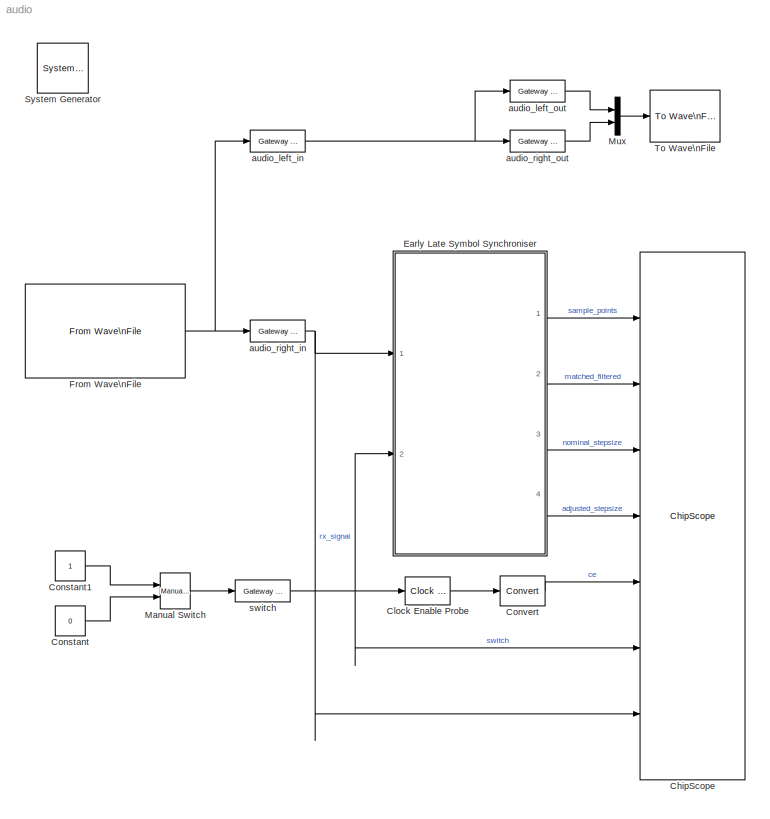
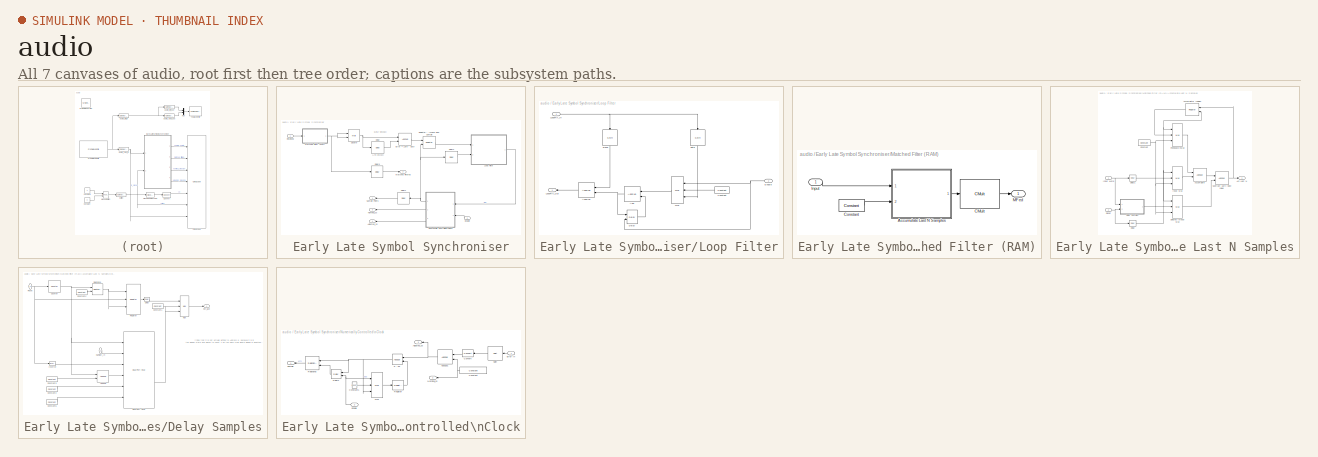
[diagram: thumbnail index - all 7 canvases of the model, root first then tree order]
MODEL audio
KIND model
CONFIG PreLoadFcn = Tsysclk=1/24000000; \nFs = 48000;\ncode_a = [0 0 0 0 1];\ncode_b = [0 0 0 1 0];\ncode_c = [0 0 0 1 1];\ncode_d = [1 0 1 1 1];\nsum_filter_taps = ones(1,31);
BLOCK [Reference]  System Generator  REF=xbsIndex_r4/ System Generator
  AttributesFormatString = System\\nGenerator
  FunctionWithSeparateData = off
  Ports = []
  RTWMemSecDataConstants = Inherit from model
  RTWMemSecDataInternal = Inherit from model
  RTWMemSecDataParameters = Inherit from model
  RTWMemSecFuncExecute = Inherit from model
  RTWMemSecFuncInitTerm = Inherit from model
  ShowPortLabels = FromPortIcon
  SourceBlock = xbsIndex_r4/ System Generator
  SourceType = Xilinx System Generator Block
  SystemSampleTime = -1
  Tag = genX
  UserData = DataTag0
  UserDataPersistent = on
  block_type = sysgen
  block_version = 8.2
  clock_wrapper = Clock Enables
  core_generation = According to Block Masks
  dbl_ovrd = According to Block Masks
  dcm_input_clock_period = 100
  deprecated_control = off
  directory = ./audio_earlylate
  eval_field = 0
  has_advanced_control = 0
  incr_netlist = off
  infoedit = System Generator
  package = ff896
  part = xc2vp30
  run_coregen = off
  sg_blockgui_xml = <!--  *  <copyright redacted>\n <icon width=\"51\" bg_color=\"beige\" height=\"50\" capti...<+2851ch>
  sg_icon_stat = 51,50,-1,-1,red,beige,0,07734
  sg_mask_display = fprintf('','COMMENT: begin icon graphics');\npatch([0 51 51 0 ],[0 0 50 50 ],[0.93 0.92 0.86]);\npatch([12 4 16 4 12 25 29 33 47 36 25 17 29 17 25 36 47 33 29 25 12 ],[5 13 25 37 45 45 41 45 45 34 45 37 25 13 5 16 5 5 9 5 5 ],[0.6 0.2 0.25]);\nplot([0 0 51 51 0 ],[0 50 50 0 0 ]);\nfprintf('','COMMENT: end icon graphics');\nfprintf('','COMMENT: begin icon text');\nfprintf('','COMMENT: end icon text...<+5ch>
  sggui_pos = -1,-1,-1,-1
  simulink_period = Tsysclk
  speed = -7
  synthesis_tool = XST
  sysclk_period = 50
  testbench = off
  trim_vbits = Everywhere in SubSystem
  xilinxfamily = virtex2p
BLOCK [Reference] ChipScope  REF=xbsIndex_r4/ChipScope
  Ports = [7]
  SRL16s = on
  SourceBlock = xbsIndex_r4/ChipScope
  SourceType = Xilinx ChipScope Block
  block_type = chipscope
  block_version = 10.1.2
  current_port = 5
  data_depth = 16384
  data_is_trigger = on
  dbl_ovrd = 0
  has_advanced_control = 0
  infoedit = Enables run-time debugging and verification of signals by inserting ChipScope Pro ICON and ILA cores.<br><br>  Restrictions: <br>Only one ChipScope core can be instantiated in a System Generator design.This block cannot be used at the same time as JTAG hardware co-simulation.A design or subsystem containing a ChipScope block must have at least one output port.
  match_type = Extended
  match_type_t0 = 1
  match_type_t1 = 3
  match_type_t10 = 1
  match_type_t11 = 1
  match_type_t12 = 1
  match_type_t13 = 1
  match_type_t14 = 1
  match_type_t15 = 1
  match_type_t2 = 3
  match_type_t3 = 3
  match_type_t4 = 3
  match_type_t5 = 3
  match_type_t6 = 3
  match_type_t7 = 1
  match_type_t8 = 1
  match_type_t9 = 1
  match_units = 1
  match_units_t0 = 1
  match_units_t1 = 1
  match_units_t10 = 1
  match_units_t11 = 1
  match_units_t12 = 1
  match_units_t13 = 1
  match_units_t14 = 1
  match_units_t15 = 1
  match_units_t2 = 1
  match_units_t3 = 1
  match_units_t4 = 1
  match_units_t5 = 1
  match_units_t6 = 1
  match_units_t7 = 1
  match_units_t8 = 1
  match_units_t9 = 1
  num_data_ports = 4
  num_trig_ports = 7
  sg_icon_stat = 105,528,1,1,white,blue,0,ec51509f,right
  sg_list_contents = {'table'=>{'show_trig_port'=>'popup(0|1|2|3|4|5|6)','userSelections'=>{'show_trig_port'=>'5'}}}
  sg_mask_display = fprintf('','COMMENT: begin icon graphics');\npatch([0 60 60 0 ],[0 0 84 84 ],[0.77 0.82 0.91]);\npatch([14 4 18 4 14 30 34 38 55 42 29 20 35 20 29 42 55 38 34 30 14 ],[18 28 42 56 66 66 62 66 66 53 66 57 42 27 18 31 18 18 22 18 18 ],[0.98 0.96 0.92]);\nplot([0 60 60 0 0 ],[0 0 84 84 0 ]);\nfprintf('','COMMENT: end icon graphics');\nfprintf('','COMMENT: begin icon text');\ncolor('black');port_label...<+387ch>
  sggui_pos = 996,253,336,501
  show_trig_port = 0
BLOCK [Reference] Clock Enable Probe  REF=xbsIndex_r4/Clock Enable Probe
  Ports = [1, 1]
  SourceBlock = xbsIndex_r4/Clock Enable Probe
  SourceType = Xilinx Clock Enable Probe Block
  block_type = ceprobe
  block_version = 10.1.2
  has_advanced_control = 0
  infoedit = Clock enable extractor.  Produces a Boolean output that mirrors the hardware clock enable associated with the input sample rate.<P><P>Hardware notes: in hardware this block costs nothing.
  sg_icon_stat = 45,28,1,1,white,blue,0,74629d84,right
  sg_mask_display = fprintf('','COMMENT: begin icon graphics');\npatch([0 45 45 0 ],[0 0 28 28 ],[0.77 0.82 0.91]);\npatch([15 10 17 10 15 22 24 26 34 28 22 18 26 18 22 28 34 26 24 22 15 ],[3 8 15 22 27 27 25 27 27 21 27 23 15 7 3 9 3 3 5 3 3 ],[0.98 0.96 0.92]);\nplot([0 45 45 0 0 ],[0 0 28 28 0 ]);\nfprintf('','COMMENT: end icon graphics');\nfprintf('','COMMENT: begin icon text');\ncolor('black');disp('CEProbe');\n...<+39ch>
  sggui_pos = 20,20,170,159
BLOCK [Constant] Constant
  SampleTime = Tsysclk*500
  Value = 0
BLOCK [Constant] Constant1
  SampleTime = Tsysclk*500
BLOCK [Reference] Convert  REF=xbsIndex_r4/Convert
  Ports = [1, 1]
  SourceBlock = xbsIndex_r4/Convert
  SourceType = Xilinx Type Converter Block
  arith_type = Unsigned
  bin_pt = 0
  block_type = convert
  block_version = 10.1.2
  dbl_ovrd = off
  has_advanced_control = 0
  infoedit = Hardware notes: rounding and saturating require hardware resources; truncating and wrapping do not.
  latency = 0
  n_bits = 1
  overflow = Wrap
  pipeline = off
  quantization = Truncate
  sg_icon_stat = 45,30,1,1,white,blue,0,74901e60,right
  sg_mask_display = fprintf('','COMMENT: begin icon graphics');\npatch([0 45 45 0 ],[0 0 30 30 ],[0.77 0.82 0.91]);\npatch([15 10 17 10 15 23 25 27 35 28 22 17 23 17 22 28 35 27 25 23 15 ],[3 8 15 22 27 27 25 27 27 20 26 21 15 9 4 10 3 3 5 3 3 ],[0.98 0.96 0.92]);\nplot([0 45 45 0 0 ],[0 0 30 30 0 ]);\nfprintf('','COMMENT: end icon graphics');\nfprintf('','COMMENT: begin icon text');\ncolor('black');port_label('outpu...<+54ch>
  sggui_pos = 20,20,470,336
  xl_area = [0,0,0,0,0,0,0]
  xl_use_area = off
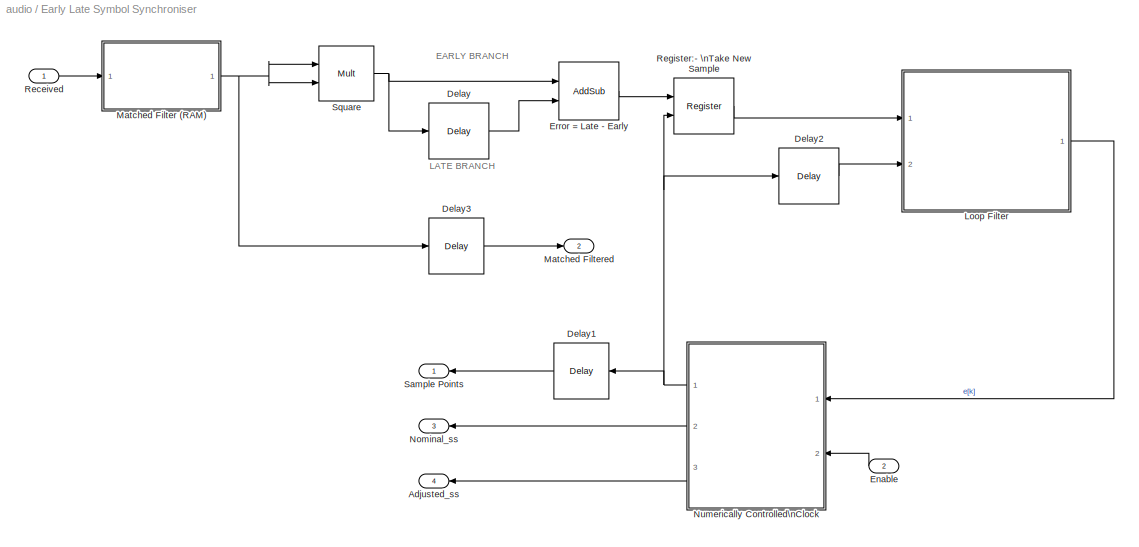
BLOCK [SubSystem] Early Late Symbol Synchroniser
  FunctionWithSeparateData = off
  MaskHideContents = off
  MinAlgLoopOccurrences = off
  Ports = [2, 4]
  RTWSystemCode = Auto
BLOCK [Outport] Early Late Symbol Synchroniser/Adjusted_ss
  BusOutputAsStruct = off
  IconDisplay = Port number
  Port = 4
BLOCK [Reference] Early Late Symbol Synchroniser/Delay  REF=xbsIndex_r4/Delay
  Ports = [1, 1]
  SourceBlock = xbsIndex_r4/Delay
  SourceType = Xilinx Delay Block
  block_type = delay
  block_version = 9.2.01
  dbl_ovrd = off
  en = off
  has_advanced_control = 0
  infoedit = Hardware notes: A delay line is a chain, each link of which is an SRL16 followed by a flip-flop.
  latency = 10
  reg_retiming = off
  sg_icon_stat = 60,56,1,1,white,blue,0,fc1feff4,right
  sg_mask_display = fprintf('','COMMENT: begin icon graphics');\npatch([0 60 60 0 ],[0 0 56 56 ],[0.77 0.82 0.91]);\npatch([15 6 19 6 15 30 34 38 54 41 29 20 32 20 29 41 54 38 34 30 15 ],[6 15 28 41 50 50 46 50 50 37 49 40 28 16 7 19 6 6 10 6 6 ],[0.98 0.96 0.92]);\nplot([0 60 60 0 0 ],[0 0 56 56 0 ]);\nfprintf('','COMMENT: end icon graphics');\nfprintf('','COMMENT: begin icon text');\ncolor('black');disp('z^{-10}','...<+56ch>
  sggui_pos = 20,20,348,255
  xl_area = [0,0,0,0,0,0,0]
  xl_use_area = off
BLOCK [Reference] Early Late Symbol Synchroniser/Delay1  REF=xbsIndex_r4/Delay
  Ports = [1, 1]
  SourceBlock = xbsIndex_r4/Delay
  SourceType = Xilinx Delay Block
  block_type = delay
  block_version = 9.2.01
  dbl_ovrd = off
  en = off
  has_advanced_control = 0
  infoedit = Hardware notes: A delay line is a chain, each link of which is an SRL16 followed by a flip-flop.
  latency = 10
  reg_retiming = off
  sg_icon_stat = 55,56,1,1,white,blue,0,fc1feff4,left
  sg_mask_display = fprintf('','COMMENT: begin icon graphics');\npatch([0 60 60 0 ],[0 0 56 56 ],[0.77 0.82 0.91]);\npatch([15 6 19 6 15 30 34 38 54 41 29 20 32 20 29 41 54 38 34 30 15 ],[6 15 28 41 50 50 46 50 50 37 49 40 28 16 7 19 6 6 10 6 6 ],[0.98 0.96 0.92]);\nplot([0 60 60 0 0 ],[0 0 56 56 0 ]);\nfprintf('','COMMENT: end icon graphics');\nfprintf('','COMMENT: begin icon text');\ncolor('black');disp('z^{-10}','...<+56ch>
  sggui_pos = 20,20,348,255
  xl_area = [0,0,0,0,0,0,0]
  xl_use_area = off
BLOCK [Reference] Early Late Symbol Synchroniser/Delay2  REF=xbsIndex_r4/Delay
  Ports = [1, 1]
  SourceBlock = xbsIndex_r4/Delay
  SourceType = Xilinx Delay Block
  block_type = delay
  block_version = 9.2.01
  dbl_ovrd = off
  en = off
  has_advanced_control = 0
  infoedit = Hardware notes: A delay line is a chain, each link of which is an SRL16 followed by a flip-flop.
  latency = 1
  reg_retiming = off
  sg_icon_stat = 60,56,1,1,white,blue,0,fc531c0e,right
  sg_mask_display = fprintf('','COMMENT: begin icon graphics');\npatch([0 60 60 0 ],[0 0 56 56 ],[0.77 0.82 0.91]);\npatch([15 6 19 6 15 30 34 38 54 41 29 20 32 20 29 41 54 38 34 30 15 ],[6 15 28 41 50 50 46 50 50 37 49 40 28 16 7 19 6 6 10 6 6 ],[0.98 0.96 0.92]);\nplot([0 60 60 0 0 ],[0 0 56 56 0 ]);\nfprintf('','COMMENT: end icon graphics');\nfprintf('','COMMENT: begin icon text');\ncolor('black');disp('z^{-1}','t...<+55ch>  <repeated x4 — deduplicated; at blocks: Delay2, Delay, Delay1>
  sggui_pos = 20,20,348,255
  xl_area = [0,0,0,0,0,0,0]
  xl_use_area = off
BLOCK [Reference] Early Late Symbol Synchroniser/Delay3  REF=xbsIndex_r4/Delay
  Ports = [1, 1]
  SourceBlock = xbsIndex_r4/Delay
  SourceType = Xilinx Delay Block
  block_type = delay
  block_version = 9.2.01
  dbl_ovrd = off
  en = off
  has_advanced_control = 0
  infoedit = Hardware notes: A delay line is a chain, each link of which is an SRL16 followed by a flip-flop.
  latency = 5
  reg_retiming = off
  sg_icon_stat = 55,56,1,1,white,blue,0,4edfc01c,right
  sg_mask_display = fprintf('','COMMENT: begin icon graphics');\npatch([0 60 60 0 ],[0 0 56 56 ],[0.77 0.82 0.91]);\npatch([15 6 19 6 15 30 34 38 54 41 29 20 32 20 29 41 54 38 34 30 15 ],[6 15 28 41 50 50 46 50 50 37 49 40 28 16 7 19 6 6 10 6 6 ],[0.98 0.96 0.92]);\nplot([0 60 60 0 0 ],[0 0 56 56 0 ]);\nfprintf('','COMMENT: end icon graphics');\nfprintf('','COMMENT: begin icon text');\ncolor('black');disp('z^{-5}','t...<+55ch>
  sggui_pos = 20,20,348,255
  xl_area = [0,0,0,0,0,0,0]
  xl_use_area = off
BLOCK [Inport] Early Late Symbol Synchroniser/Enable
  IconDisplay = Port number
  Port = 2
BLOCK [Reference] Early Late Symbol Synchroniser/Error = Late - Early  REF=xbsIndex_r4/AddSub
  Ports = [2, 1]
  SourceBlock = xbsIndex_r4/AddSub
  SourceType = Xilinx Adder/Subtractor Block
  arith_type = Signed  (2's comp)
  bin_pt = 14
  block_type = addsub
  block_version = 9.2.01
  dbl_ovrd = off
  en = off
  has_advanced_control = 0
  latency = 0
  mode = Subtraction
  n_bits = 16
  overflow = Wrap
  pipelined = off
  precision = User Defined
  quantization = Truncate
  sg_icon_stat = 60,58,1,1,white,blue,0,46b4c804,right
  sg_mask_display = fprintf('','COMMENT: begin icon graphics');\npatch([0 60 60 0 ],[0 0 58 58 ],[0.77 0.82 0.91]);\npatch([15 5 19 5 15 30 34 38 54 41 29 20 34 20 29 41 54 38 34 30 15 ],[6 16 30 44 54 54 50 54 54 41 53 44 30 16 7 19 6 6 10 6 6 ],[0.98 0.96 0.92]);\nplot([0 60 60 0 0 ],[0 0 58 58 0 ]);\nfprintf('','COMMENT: end icon graphics');\nfprintf('','COMMENT: begin icon text');\ncolor('black');port_label('inpu...<+163ch>  <repeated x7 — deduplicated; at blocks: Error = Late - Early, Add, AddSub, Accumulate, Subtract 16th \nlast value, AddSub1>
  sggui_pos = 20,20,348,307
  use_behavioral_HDL = off
  use_carryin = off
  use_carryout = off
  use_rpm = on
  xl_area = [0,0,0,0,0,0,0]
  xl_use_area = off
BLOCK [SubSystem] Early Late Symbol Synchroniser/Loop Filter
  FunctionWithSeparateData = off
  MaskCallbackString = |||
  MaskDescription = The loop filter contains two paths: a proportional path and an integral path. These are characterised by coefficients Alpha and Beta, respectively. Multiplications by these coefficients are both realised via shifts, for hardware efficiency reasons.\n\nMask to be completed... not yet straight on the wordlength implications and the choices that should be presented via the mask.
  MaskEnableString = on,on,on,on
  MaskHideContents = off
  MaskIconFrame = on
  MaskIconOpaque = on
  MaskIconRotate = none
  MaskIconUnits = autoscale
  MaskInitialization = if extend_wl == true\n    alpha_shift_wl = phase_det_word + alpha_n;\n    beta_shift_wl = phase_det_word + beta_n;\nelse\n    alpha_shift_wl = phase_det_word;\n    beta_shift_wl = phase_det_word;\nend
  MaskPromptString = Alpha (bits to shift right by)|Beta (bits to shift right by)|Input wordlength|Retain full precision?
  MaskStyleString = edit,edit,edit,checkbox
  MaskTabNameString = ,,,
  MaskToolTipString = on,on,on,on
  MaskTunableValueString = on,on,on,on
  MaskType = Loop Filter Parameters
  MaskValueString = 5|9|16|on
  MaskVarAliasString = ,,,
  MaskVariables = alpha_n=@1;beta_n=@2;phase_det_word=@3;extend_wl=@4;
  MaskVisibilityString = on,on,on,on
  MinAlgLoopOccurrences = off
  Ports = [2, 1]
  RTWSystemCode = Auto
BLOCK [Reference] Early Late Symbol Synchroniser/Loop Filter/Add  REF=xbsIndex_r4/AddSub
  Ports = [2, 1]
  SourceBlock = xbsIndex_r4/AddSub
  SourceType = Xilinx Adder/Subtractor Block
  arith_type = Signed  (2's comp)
  bin_pt = 20
  block_type = addsub
  block_version = 9.2.01
  dbl_ovrd = off
  en = off
  has_advanced_control = 0
  latency = 0
  mode = Addition
  n_bits = 40
  overflow = Wrap
  pipelined = off
  precision = User Defined
  quantization = Round  (unbiased: +/- Inf)
  sg_icon_stat = 60,58,1,1,white,blue,0,36a47907,right
  sggui_pos = 20,20,348,307
  use_behavioral_HDL = off
  use_carryin = off
  use_carryout = off
  use_rpm = on
  xl_area = [0,0,0,0,0,0,0]
  xl_use_area = off
BLOCK [Reference] Early Late Symbol Synchroniser/Loop Filter/AddSub  REF=xbsIndex_r4/AddSub
  Ports = [2, 1]
  SourceBlock = xbsIndex_r4/AddSub
  SourceType = Xilinx Adder/Subtractor Block
  arith_type = Signed  (2's comp)
  bin_pt = 14
  block_type = addsub
  block_version = 9.2.01
  dbl_ovrd = off
  en = off
  has_advanced_control = 0
  latency = 0
  mode = Addition
  n_bits = 20
  overflow = Wrap
  pipelined = off
  precision = Full
  quantization = Round  (unbiased: +/- Inf)
  sg_icon_stat = 60,58,1,1,white,blue,0,36a47907,right
  sggui_pos = 20,20,348,307
  use_behavioral_HDL = off
  use_carryin = off
  use_carryout = off
  use_rpm = on
  xl_area = [0,0,0,0,0,0,0]
  xl_use_area = off
BLOCK [Reference] Early Late Symbol Synchroniser/Loop Filter/Constant  REF=xbsIndex_r4/Constant
  Ports = [0, 1]
  SourceBlock = xbsIndex_r4/Constant
  SourceType = Xilinx Constant Block Block
  arith_type = Signed (2's comp)
  bin_pt = 0
  block_type = constant
  block_version = 9.2.01
  carry = CIN
  const = 0
  dbl_ovrd = off
  dsp48_infoedit = The use of this block for DSP48 instructions is deprecated.  Please use the Opmode block.
  equ = P=C
  explicit_period = off
  has_advanced_control = 0
  inp1 = P
  inp2 = PCIN>>17
  n_bits = 2
  opr = +
  opselect = C
  period = 1
  sg_icon_stat = 55,26,1,1,white,blue,0,72d575a1,right
  sg_mask_display = fprintf('','COMMENT: begin icon graphics');\npatch([0 55 55 0 ],[0 0 26 26 ],[0.77 0.82 0.91]);\npatch([20 16 22 16 20 27 29 31 38 32 26 22 28 22 26 32 38 31 29 27 20 ],[3 7 13 19 23 23 21 23 23 17 23 19 13 7 3 9 3 3 5 3 3 ],[0.98 0.96 0.92]);\nplot([0 55 55 0 0 ],[0 0 26 26 0 ]);\nfprintf('','COMMENT: end icon graphics');\nfprintf('','COMMENT: begin icon text');\ncolor('black');port_label('output...<+50ch>  <repeated x6 — deduplicated; at blocks: Constant, Constant1, Constant2, Constant5>
  sggui_pos = 20,20,400,346
BLOCK [Reference] Early Late Symbol Synchroniser/Loop Filter/Delay  REF=xbsIndex_r4/Delay
  Ports = [2, 1]
  SourceBlock = xbsIndex_r4/Delay
  SourceType = Xilinx Delay Block
  block_type = delay
  block_version = 9.2.01
  dbl_ovrd = off
  en = on
  has_advanced_control = 0
  infoedit = Hardware notes: A delay line is a chain, each link of which is an SRL16 followed by a flip-flop.
  latency = 1
  reg_retiming = off
  sg_icon_stat = 40,53,1,1,white,blue,0,9c7d2b66,right
  sg_mask_display = fprintf('','COMMENT: begin icon graphics');\npatch([0 40 40 0 ],[0 0 53 53 ],[0.77 0.82 0.91]);\npatch([10 3 12 3 10 21 24 27 38 29 20 14 24 14 20 29 38 27 24 21 10 ],[11 18 27 36 43 43 40 43 43 34 43 37 27 17 11 20 11 11 14 11 11 ],[0.98 0.96 0.92]);\nplot([0 40 40 0 0 ],[0 0 53 53 0 ]);\nfprintf('','COMMENT: end icon graphics');\nfprintf('','COMMENT: begin icon text');\ncolor('black');port_label...<+105ch>
  sggui_pos = 20,20,348,255
  xl_area = [0,0,0,0,0,0,0]
  xl_use_area = off
BLOCK [Inport] Early Late Symbol Synchroniser/Loop Filter/Enable
  IconDisplay = Port number
  Port = 2
BLOCK [Inport] Early Late Symbol Synchroniser/Loop Filter/LoopFilt_In
  IconDisplay = Port number
BLOCK [Outport] Early Late Symbol Synchroniser/Loop Filter/LoopFilt_Out
  BusOutputAsStruct = off
  IconDisplay = Port number
BLOCK [Reference] Early Late Symbol Synchroniser/Loop Filter/Mux  REF=xbsIndex_r4/Mux
  Ports = [3, 1]
  SourceBlock = xbsIndex_r4/Mux
  SourceType = Xilinx Bus Multiplexer Block
  arith_type = Unsigned
  bin_pt = 14
  block_type = mux
  block_version = 9.2.01
  dbl_ovrd = off
  en = off
  has_advanced_control = 0
  inputs = 2
  latency = 0
  n_bits = 16
  overflow = Wrap
  precision = Full
  quantization = Truncate
  sg_icon_stat = 45,104,1,1,white,blue,3,613f58e1,left
  sg_mask_display = fprintf('','COMMENT: begin icon graphics');\npatch([0 45 45 0 ],[0 14.8571 89.1429 104 ],[0.77 0.82 0.91]);\npatch([10 3 14 3 10 22 25 28 41 31 21 14 25 14 21 31 41 28 25 22 10 ],[34 41 52 63 70 70 67 70 70 60 70 63 52 41 34 44 34 34 37 34 34 ],[0.98 0.96 0.92]);\nplot([0 45 45 0 0 ],[0 14.8571 89.1429 104 0 ]);\nfprintf('','COMMENT: end icon graphics');\nfprintf('','COMMENT: begin icon text');\nc...<+218ch>  <repeated x6 — deduplicated; at blocks: Mux, Delayed \nInput Mux, Feedback\nMux, Input Mux>
  sggui_pos = -1,-1,-1,-1
  xl_area = [0,0,0,0,0,0,0]
  xl_use_area = off
BLOCK [Reference] Early Late Symbol Synchroniser/Loop Filter/alpha  REF=xbsIndex_r4/Shift
  Ports = [1, 1]
  SourceBlock = xbsIndex_r4/Shift
  SourceType = Xilinx Binary Shift Operator Block
  arith_type = Signed  (2's comp)
  bin_pt = alpha_shift_wl-2
  block_type = shift
  block_version = 9.2.01
  dbl_ovrd = off
  en = off
  has_advanced_control = 0
  infoedit = Hardware notes: In hardware this block costs nothing if full output precision is used.
  latency = 0
  n_bits = alpha_shift_wl
  overflow = Wrap
  precision = User Defined
  quantization = Round  (unbiased: +/- Inf)
  sg_icon_stat = 56,60,1,1,white,blue,0,a5bf79ea,right
  sg_mask_display = fprintf('','COMMENT: begin icon graphics');\npatch([0 60 60 0 ],[0 0 56 56 ],[0.77 0.82 0.91]);\npatch([15 6 19 6 15 30 34 38 54 41 29 20 32 20 29 41 54 38 34 30 15 ],[6 15 28 41 50 50 46 50 50 37 49 40 28 16 7 19 6 6 10 6 6 ],[0.98 0.96 0.92]);\nplot([0 60 60 0 0 ],[0 0 56 56 0 ]);\nfprintf('','COMMENT: end icon graphics');\nfprintf('','COMMENT: begin icon text');\ncolor('black');disp('\\newline\...<+85ch>  <repeated x3 — deduplicated; at blocks: alpha, beta, Shift>
  sggui_pos = 20,20,348,345
  shift_bits = alpha_n
  shift_dir = Right
  xl_area = [0,0,0,0,0,0,0]
  xl_use_area = off
BLOCK [Reference] Early Late Symbol Synchroniser/Loop Filter/beta  REF=xbsIndex_r4/Shift
  Ports = [1, 1]
  SourceBlock = xbsIndex_r4/Shift
  SourceType = Xilinx Binary Shift Operator Block
  arith_type = Signed  (2's comp)
  bin_pt = beta_shift_wl-2
  block_type = shift
  block_version = 9.2.01
  dbl_ovrd = off
  en = off
  has_advanced_control = 0
  infoedit = Hardware notes: In hardware this block costs nothing if full output precision is used.
  latency = 0
  n_bits = beta_shift_wl
  overflow = Wrap
  precision = User Defined
  quantization = Round  (unbiased: +/- Inf)
  sg_icon_stat = 56,60,1,1,white,blue,0,3d17c8c9,right
  sggui_pos = 20,20,348,345
  shift_bits = beta_n
  shift_dir = Right
  xl_area = [0,0,0,0,0,0,0]
  xl_use_area = off
BLOCK [SubSystem] Early Late Symbol Synchroniser/Matched Filter (RAM)
  FunctionWithSeparateData = off
  MaskDescription = This acts as a moving average filter of length N samples.
  MaskEnableString = on
  MaskHideContents = off
  MaskIconFrame = on
  MaskIconOpaque = on
  MaskIconRotate = none
  MaskIconUnits = autoscale
  MaskPromptString = Moving Average (N samples)
  MaskStyleString = edit
  MaskToolTipString = on
  MaskTunableValueString = on
  MaskType = Rectangular Matched Filter
  MaskValueString = 20
  MaskVariables = N=@1;
  MaskVisibilityString = on
  MinAlgLoopOccurrences = off
  Ports = [1, 1]
  RTWSystemCode = Auto
BLOCK [SubSystem] Early Late Symbol Synchroniser/Matched Filter (RAM)/Accumulate Last N Samples
  FunctionWithSeparateData = off
  MaskCallbackString = ||
  MaskDescription = This block accumulates over a specified number of samples.\n\nInternal and output wordlengths are defined by the wordlength of the input, and the accumulator window.
  MaskEnableString = on,on,on
  MaskHideContents = off
  MaskIconFrame = on
  MaskIconOpaque = on
  MaskIconRotate = none
  MaskIconUnits = autoscale
  MaskPromptString = Accumulate window (samples)|Input wordlength|Binary point
  MaskStyleString = edit,edit,edit
  MaskTabNameString = ,,
  MaskToolTipString = on,on,on
  MaskTunableValueString = on,on,on
  MaskType = Sliding Accumulator
  MaskValueString = N|16|14
  MaskVarAliasString = ,,
  MaskVariables = N=@1;Wbits=@2;Bpoint=@3;
  MaskVisibilityString = on,on,on
  MinAlgLoopOccurrences = off
  Ports = [2, 1]
  RTWSystemCode = Auto
BLOCK [Outport] Early Late Symbol Synchroniser/Matched Filter (RAM)/Accumulate Last N Samples/Acc Last N
  BusOutputAsStruct = off
  IconDisplay = Port number
BLOCK [Reference] Early Late Symbol Synchroniser/Matched Filter (RAM)/Accumulate Last N Samples/Accumulate  REF=xbsIndex_r4/AddSub
  Ports = [2, 1]
  SourceBlock = xbsIndex_r4/AddSub
  SourceType = Xilinx Adder/Subtractor Block
  arith_type = Signed  (2's comp)
  bin_pt = Bpoint
  block_type = addsub
  block_version = 9.2.01
  dbl_ovrd = off
  en = off
  has_advanced_control = 0
  latency = 0
  mode = Addition
  n_bits = Wbits+ceil(log2(N))
  overflow = Wrap
  pipelined = off
  precision = User Defined
  quantization = Truncate
  sg_icon_stat = 60,58,1,1,white,blue,0,36a47907,right
  sggui_pos = 20,20,348,307
  use_behavioral_HDL = off
  use_carryin = off
  use_carryout = off
  use_rpm = on
  xl_area = [9 0 0 16 0 0 0]
  xl_use_area = off
BLOCK [Reference] Early Late Symbol Synchroniser/Matched Filter (RAM)/Accumulate Last N Samples/Accumulator \nDelay  REF=xbsIndex_r4/Register
  Ports = [2, 1]
  SourceBlock = xbsIndex_r4/Register
  SourceType = Xilinx Register Block
  block_type = register
  block_version = 9.2.01
  dbl_ovrd = off
  en = off
  has_advanced_control = 0
  init = 0
  rst = on
  sg_icon_stat = 60,56,1,1,white,blue,0,b6caf0d3,left
  sg_mask_display = fprintf('','COMMENT: begin icon graphics');\npatch([0 60 60 0 ],[0 0 56 56 ],[0.77 0.82 0.91]);\npatch([15 6 19 6 15 30 34 38 54 41 29 20 32 20 29 41 54 38 34 30 15 ],[6 15 28 41 50 50 46 50 50 37 49 40 28 16 7 19 6 6 10 6 6 ],[0.98 0.96 0.92]);\nplot([0 60 60 0 0 ],[0 0 56 56 0 ]);\nfprintf('','COMMENT: end icon graphics');\nfprintf('','COMMENT: begin icon text');\ncolor('black');port_label('inpu...<+193ch>
  sggui_pos = 20,20,348,193
  xl_area = [8 16 0 0 0 0 0]
  xl_use_area = off
BLOCK [Reference] Early Late Symbol Synchroniser/Matched Filter (RAM)/Accumulate Last N Samples/Constant  REF=xbsIndex_r4/Constant
  Ports = [0, 1]
  SourceBlock = xbsIndex_r4/Constant
  SourceType = Xilinx Constant Block Block
  arith_type = Signed (2's comp)
  bin_pt = 0
  block_type = constant
  block_version = 9.2.01
  carry = CIN
  const = 0
  dbl_ovrd = off
  dsp48_infoedit = The use of this block for DSP48 instructions is deprecated.  Please use the Opmode block.
  equ = P=C
  explicit_period = off
  has_advanced_control = 0
  inp1 = P
  inp2 = PCIN>>17
  n_bits = 2
  opr = +
  opselect = C
  period = 1
  sg_icon_stat = 55,26,1,1,white,blue,0,72d575a1,right
  sggui_pos = 20,20,400,346
BLOCK [Reference] Early Late Symbol Synchroniser/Matched Filter (RAM)/Accumulate Last N Samples/Delay  REF=xbsIndex_r4/Delay
  Ports = [1, 1]
  SourceBlock = xbsIndex_r4/Delay
  SourceType = Xilinx Delay Block
  block_type = delay
  block_version = 9.2.01
  dbl_ovrd = off
  en = off
  has_advanced_control = 0
  infoedit = Hardware notes: A delay line is a chain, each link of which is an SRL16 followed by a flip-flop.
  latency = 1
  reg_retiming = off
  sg_icon_stat = 30,28,1,1,white,blue,0,fc531c0e,right
  sggui_pos = -1,-1,-1,-1
  xl_area = [0,0,0,0,0,0,0]
  xl_use_area = off
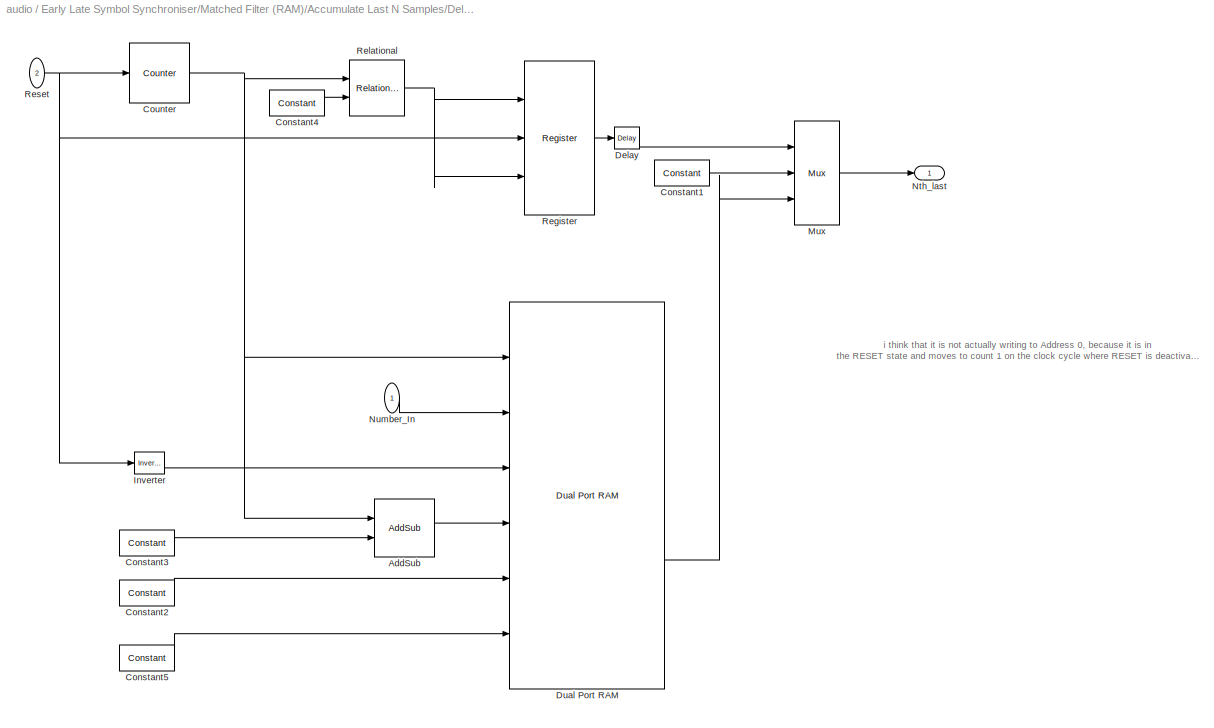
BLOCK [SubSystem] Early Late Symbol Synchroniser/Matched Filter (RAM)/Accumulate Last N Samples/Delay Samples
  FunctionWithSeparateData = off
  MaskDescription = A dual-port RAM is used to synthesise a resettable delay line of the specified number of samples.
  MaskEnableString = on
  MaskHideContents = off
  MaskIconFrame = on
  MaskIconOpaque = on
  MaskIconRotate = none
  MaskIconUnits = autoscale
  MaskPromptString = Samples delay
  MaskStyleString = edit
  MaskToolTipString = on
  MaskTunableValueString = on
  MaskType = Parameterisable Delay
  MaskValueString = N
  MaskVariables = D=@1;
  MaskVisibilityString = on
  MinAlgLoopOccurrences = off
  Ports = [2, 1]
  RTWSystemCode = Auto
BLOCK [Reference] Early Late Symbol Synchroniser/Matched Filter (RAM)/Accumulate Last N Samples/Delay Samples/AddSub  REF=xbsIndex_r4/AddSub
  Ports = [2, 1]
  SourceBlock = xbsIndex_r4/AddSub
  SourceType = Xilinx Adder/Subtractor Block
  arith_type = Unsigned
  bin_pt = 0
  block_type = addsub
  block_version = 9.2.01
  dbl_ovrd = off
  en = off
  has_advanced_control = 0
  latency = 0
  mode = Subtraction
  n_bits = ceil(log2(D)+1)
  overflow = Wrap
  pipelined = off
  precision = User Defined
  quantization = Truncate
  sg_icon_stat = 60,58,1,1,white,blue,0,46b4c804,right
  sggui_pos = 20,20,348,307
  use_behavioral_HDL = off
  use_carryin = off
  use_carryout = off
  use_rpm = on
  xl_area = [0,0,0,0,0,0,0]
  xl_use_area = off
BLOCK [Reference] Early Late Symbol Synchroniser/Matched Filter (RAM)/Accumulate Last N Samples/Delay Samples/Constant1  REF=xbsIndex_r4/Constant
  Ports = [0, 1]
  SourceBlock = xbsIndex_r4/Constant
  SourceType = Xilinx Constant Block Block
  arith_type = Signed (2's comp)
  bin_pt = 0
  block_type = constant
  block_version = 9.2.01
  carry = CIN
  const = 0
  dbl_ovrd = off
  dsp48_infoedit = The use of this block for DSP48 instructions is deprecated.  Please use the Opmode block.
  equ = P=C
  explicit_period = off
  has_advanced_control = 0
  inp1 = P
  inp2 = PCIN>>17
  n_bits = 2
  opr = +
  opselect = C
  period = 1
  sg_icon_stat = 55,26,1,1,white,blue,0,72d575a1,right
  sggui_pos = 20,20,400,346
BLOCK [Reference] Early Late Symbol Synchroniser/Matched Filter (RAM)/Accumulate Last N Samples/Delay Samples/Constant2  REF=xbsIndex_r4/Constant
  Ports = [0, 1]
  SourceBlock = xbsIndex_r4/Constant
  SourceType = Xilinx Constant Block Block
  arith_type = Signed (2's comp)
  bin_pt = 14
  block_type = constant
  block_version = 9.2.01
  carry = CIN
  const = 0
  dbl_ovrd = off
  dsp48_infoedit = The use of this block for DSP48 instructions is deprecated.  Please use the Opmode block.
  equ = P=C
  explicit_period = off
  has_advanced_control = 0
  inp1 = P
  inp2 = PCIN>>17
  n_bits = 16
  opr = +
  opselect = C
  period = 1
  sg_icon_stat = 55,26,1,1,white,blue,0,72d575a1,right
  sggui_pos = 20,20,400,346
BLOCK [Reference] Early Late Symbol Synchroniser/Matched Filter (RAM)/Accumulate Last N Samples/Delay Samples/Constant3  REF=xbsIndex_r4/Constant
  Ports = [0, 1]
  SourceBlock = xbsIndex_r4/Constant
  SourceType = Xilinx Constant Block Block
  arith_type = Unsigned
  bin_pt = 0
  block_type = constant
  block_version = 9.2.01
  carry = CIN
  const = D
  dbl_ovrd = off
  dsp48_infoedit = The use of this block for DSP48 instructions is deprecated.  Please use the Opmode block.
  equ = P=C
  explicit_period = off
  has_advanced_control = 0
  inp1 = P
  inp2 = PCIN>>17
  n_bits = ceil(log2(D)+1)
  opr = +
  opselect = C
  period = 1
  sg_icon_stat = 55,26,1,1,white,blue,0,11b45204,right
  sg_mask_display = fprintf('','COMMENT: begin icon graphics');\npatch([0 55 55 0 ],[0 0 26 26 ],[0.77 0.82 0.91]);\npatch([20 16 22 16 20 27 29 31 38 32 26 22 28 22 26 32 38 31 29 27 20 ],[3 7 13 19 23 23 21 23 23 17 23 19 13 7 3 9 3 3 5 3 3 ],[0.98 0.96 0.92]);\nplot([0 55 55 0 0 ],[0 0 26 26 0 ]);\nfprintf('','COMMENT: end icon graphics');\nfprintf('','COMMENT: begin icon text');\ncolor('black');port_label('output...<+51ch>
  sggui_pos = 20,20,400,346
BLOCK [Reference] Early Late Symbol Synchroniser/Matched Filter (RAM)/Accumulate Last N Samples/Delay Samples/Constant4  REF=xbsIndex_r4/Constant
  Ports = [0, 1]
  SourceBlock = xbsIndex_r4/Constant
  SourceType = Xilinx Constant Block Block
  arith_type = Unsigned
  bin_pt = 0
  block_type = constant
  block_version = 9.2.01
  carry = CIN
  const = D-1
  dbl_ovrd = off
  dsp48_infoedit = The use of this block for DSP48 instructions is deprecated.  Please use the Opmode block.
  equ = P=C
  explicit_period = off
  has_advanced_control = 0
  inp1 = P
  inp2 = PCIN>>17
  n_bits = ceil(log2(D))
  opr = +
  opselect = C
  period = 1
  sg_icon_stat = 55,26,1,1,white,blue,0,7ae7743c,right
  sg_mask_display = fprintf('','COMMENT: begin icon graphics');\npatch([0 55 55 0 ],[0 0 26 26 ],[0.77 0.82 0.91]);\npatch([20 16 22 16 20 27 29 31 38 32 26 22 28 22 26 32 38 31 29 27 20 ],[3 7 13 19 23 23 21 23 23 17 23 19 13 7 3 9 3 3 5 3 3 ],[0.98 0.96 0.92]);\nplot([0 55 55 0 0 ],[0 0 26 26 0 ]);\nfprintf('','COMMENT: end icon graphics');\nfprintf('','COMMENT: begin icon text');\ncolor('black');port_label('output...<+51ch>
  sggui_pos = 20,20,400,346
BLOCK [Reference] Early Late Symbol Synchroniser/Matched Filter (RAM)/Accumulate Last N Samples/Delay Samples/Constant5  REF=xbsIndex_r4/Constant
  Ports = [0, 1]
  SourceBlock = xbsIndex_r4/Constant
  SourceType = Xilinx Constant Block Block
  arith_type = Boolean
  bin_pt = 0
  block_type = constant
  block_version = 9.2.01
  carry = CIN
  const = 0
  dbl_ovrd = off
  dsp48_infoedit = The use of this block for DSP48 instructions is deprecated.  Please use the Opmode block.
  equ = P=C
  explicit_period = off
  has_advanced_control = 0
  inp1 = P
  inp2 = PCIN>>17
  n_bits = ceil(log2(D)+1)
  opr = +
  opselect = C
  period = 1
  sg_icon_stat = 55,26,1,1,white,blue,0,72d575a1,right
  sggui_pos = 20,20,400,346
BLOCK [Reference] Early Late Symbol Synchroniser/Matched Filter (RAM)/Accumulate Last N Samples/Delay Samples/Counter  REF=xbsIndex_r4/Counter
  Ports = [1, 1]
  SourceBlock = xbsIndex_r4/Counter
  SourceType = Xilinx Counter Block
  arith_type = Unsigned
  bin_pt = 0
  block_type = counter
  block_version = 9.2.01
  cnt_by_val = 1
  cnt_to = Inf
  cnt_type = Free Running
  dbl_ovrd = off
  en = off
  explicit_period = on
  has_advanced_control = 0
  infoedit = Hardware notes: Free running counters are the least expensive in hardware.  A count limited counter is implemented by combining a counter with a comparator.
  load_pin = off
  n_bits = ceil(log2(D)+1)
  operation = Up
  period = 1/Fs
  rst = on
  sg_icon_stat = 60,60,1,1,white,blue,0,300e9576,right
  sg_mask_display = fprintf('','COMMENT: begin icon graphics');\npatch([0 60 60 0 ],[0 0 60 60 ],[0.77 0.82 0.91]);\npatch([14 4 18 4 14 30 34 38 55 42 29 20 35 20 29 42 55 38 34 30 14 ],[6 16 30 44 54 54 50 54 54 41 54 45 30 15 6 19 6 6 10 6 6 ],[0.98 0.96 0.92]);\nplot([0 60 60 0 0 ],[0 0 60 60 0 ]);\nfprintf('','COMMENT: end icon graphics');\nfprintf('','COMMENT: begin icon text');\ncolor('black');port_label('inpu...<+99ch>
  sggui_pos = 20,20,348,619
  start_count = 0
  use_behavioral_HDL = off
  use_rpm = off
  xl_area = [0,0,0,0,0,0,0]
  xl_use_area = off
BLOCK [Reference] Early Late Symbol Synchroniser/Matched Filter (RAM)/Accumulate Last N Samples/Delay Samples/Delay  REF=xbsIndex_r4/Delay
  Ports = [1, 1]
  SourceBlock = xbsIndex_r4/Delay
  SourceType = Xilinx Delay Block
  block_type = delay
  block_version = 9.2.01
  dbl_ovrd = off
  en = off
  has_advanced_control = 0
  infoedit = Hardware notes: A delay line is a chain, each link of which is an SRL16 followed by a flip-flop.
  latency = 1
  reg_retiming = off
  sg_icon_stat = 25,22,1,1,white,blue,0,fc531c0e,right
  sggui_pos = -1,-1,-1,-1
  xl_area = [0,0,0,0,0,0,0]
  xl_use_area = off
BLOCK [Reference] Early Late Symbol Synchroniser/Matched Filter (RAM)/Accumulate Last N Samples/Delay Samples/Dual Port RAM  REF=xbsIndex_r4/Dual Port RAM
  Ports = [6, 2]
  SourceBlock = xbsIndex_r4/Dual Port RAM
  SourceType = Xilinx Dual Port Random Access Memory Block
  block_type = dpram
  block_version = 9.2.01
  dbl_ovrd = off
  depth = 2^ceil(log2(D)+1)
  distributed_mem = Block RAM
  en_a = off
  en_b = off
  has_advanced_control = 0
  initVector = zeros(1,ceil(log2(D)+1))
  init_a = 0
  init_b = 0
  latency = 1
  optimize = Area
  rst_a = off
  rst_b = off
  sg_icon_stat = 155,387,1,1,white,blue,0,f19ffcf5,right
  sg_mask_display = fprintf('','COMMENT: begin icon graphics');\npatch([0 155 155 0 ],[0 0 387 387 ],[0.77 0.82 0.91]);\npatch([37 11 47 11 37 78 89 100 144 109 76 52 88 52 76 109 144 100 89 78 37 ],[133 159 195 231 257 257 246 257 257 222 255 231 195 159 135 168 133 133 144 133 133 ],[0.98 0.96 0.92]);\nplot([0 155 155 0 0 ],[0 0 387 387 0 ]);\nfprintf('','COMMENT: end icon graphics');\nfprintf('','COMMENT: begin ic...<+415ch>
  sggui_pos = 20,20,384,398
  use_rpm = on
  write_mode_A = Read After Write
  write_mode_B = Read After Write
  xl_area = [0,0,0,0,0,0,0]
  xl_use_area = off
BLOCK [Reference] Early Late Symbol Synchroniser/Matched Filter (RAM)/Accumulate Last N Samples/Delay Samples/Inverter  REF=xbsIndex_r4/Inverter
  Ports = [1, 1]
  SourceBlock = xbsIndex_r4/Inverter
  SourceType = Xilinx Inverter Block
  block_type = inv
  block_version = 9.2.01
  dbl_ovrd = off
  en = off
  has_advanced_control = 0
  infoedit = Bitwise logical negation (one's complement) operator.
  latency = 0
  sg_icon_stat = 30,22,1,1,white,blue,0,1ab4a85f,right
  sg_mask_display = fprintf('','COMMENT: begin icon graphics');\npatch([0 55 55 0 ],[0 0 58 58 ],[0.77 0.82 0.91]);\npatch([13 4 17 4 13 28 32 36 52 40 28 19 32 19 28 40 52 36 32 28 13 ],[7 16 29 42 51 51 47 51 51 39 51 42 29 16 7 19 7 7 11 7 7 ],[0.98 0.96 0.92]);\nplot([0 55 55 0 0 ],[0 0 58 58 0 ]);\nfprintf('','COMMENT: end icon graphics');\nfprintf('','COMMENT: begin icon text');\ncolor('black');disp('not');\nfp...<+37ch>
  sggui_pos = -1,-1,-1,-1
  xl_area = [0,0,0,0,0,0,0]
  xl_use_area = off
BLOCK [Reference] Early Late Symbol Synchroniser/Matched Filter (RAM)/Accumulate Last N Samples/Delay Samples/Mux  REF=xbsIndex_r4/Mux
  Ports = [3, 1]
  SourceBlock = xbsIndex_r4/Mux
  SourceType = Xilinx Bus Multiplexer Block
  arith_type = Unsigned
  bin_pt = 14
  block_type = mux
  block_version = 9.2.01
  dbl_ovrd = off
  en = off
  has_advanced_control = 0
  inputs = 2
  latency = 0
  n_bits = 16
  overflow = Wrap
  precision = Full
  quantization = Truncate
  sg_icon_stat = 45,104,1,1,white,blue,3,613f58e1,right
  sggui_pos = 20,20,348,303
  xl_area = [0,0,0,0,0,0,0]
  xl_use_area = off
BLOCK [Outport] Early Late Symbol Synchroniser/Matched Filter (RAM)/Accumulate Last N Samples/Delay Samples/Nth_last
  BusOutputAsStruct = off
  IconDisplay = Port number
BLOCK [Inport] Early Late Symbol Synchroniser/Matched Filter (RAM)/Accumulate Last N Samples/Delay Samples/Number_In
  IconDisplay = Port number
BLOCK [Reference] Early Late Symbol Synchroniser/Matched Filter (RAM)/Accumulate Last N Samples/Delay Samples/Register  REF=xbsIndex_r4/Register
  Ports = [3, 1]
  SourceBlock = xbsIndex_r4/Register
  SourceType = Xilinx Register Block
  block_type = register
  block_version = 9.2.01
  dbl_ovrd = off
  en = on
  has_advanced_control = 0
  init = 0
  rst = on
  sg_icon_stat = 70,154,1,1,white,blue,0,923c1847,right
  sg_mask_display = fprintf('','COMMENT: begin icon graphics');\npatch([0 60 60 0 ],[0 0 56 56 ],[0.77 0.82 0.91]);\npatch([15 6 19 6 15 30 34 38 54 41 29 20 32 20 29 41 54 38 34 30 15 ],[6 15 28 41 50 50 46 50 50 37 49 40 28 16 7 19 6 6 10 6 6 ],[0.98 0.96 0.92]);\nplot([0 60 60 0 0 ],[0 0 56 56 0 ]);\nfprintf('','COMMENT: end icon graphics');\nfprintf('','COMMENT: begin icon text');\ncolor('black');port_label('inpu...<+237ch>
  sggui_pos = 20,20,348,193
  xl_area = [0,0,0,0,0,0,0]
  xl_use_area = off
BLOCK [Reference] Early Late Symbol Synchroniser/Matched Filter (RAM)/Accumulate Last N Samples/Delay Samples/Relational  REF=xbsIndex_r4/Relational
  Ports = [2, 1]
  SourceBlock = xbsIndex_r4/Relational
  SourceType = Xilinx Arithmetic Relational Operator Block
  block_type = relational
  block_version = 9.2.01
  dbl_ovrd = off
  en = off
  has_advanced_control = 0
  latency = 0
  mode = a=b
  sg_icon_stat = 55,56,1,1,white,blue,0,1b68ef8e,right
  sg_mask_display = fprintf('','COMMENT: begin icon graphics');\npatch([0 55 55 0 ],[0 0 56 56 ],[0.77 0.82 0.91]);\npatch([13 4 17 4 13 28 32 36 52 40 28 19 32 19 28 40 52 36 32 28 13 ],[6 15 28 41 50 50 46 50 50 38 50 41 28 15 6 18 6 6 10 6 6 ],[0.98 0.96 0.92]);\nplot([0 55 55 0 0 ],[0 0 56 56 0 ]);\nfprintf('','COMMENT: end icon graphics');\nfprintf('','COMMENT: begin icon text');\ncolor('black');port_label('inpu...<+168ch>
  sggui_pos = 20,20,348,193
  xl_area = [0,0,0,0,0,0,0]
  xl_use_area = off
BLOCK [Inport] Early Late Symbol Synchroniser/Matched Filter (RAM)/Accumulate Last N Samples/Delay Samples/Reset
  IconDisplay = Port number
  Port = 2
BLOCK [Reference] Early Late Symbol Synchroniser/Matched Filter (RAM)/Accumulate Last N Samples/Delay1  REF=xbsIndex_r4/Delay
  Ports = [1, 1]
  SourceBlock = xbsIndex_r4/Delay
  SourceType = Xilinx Delay Block
  block_type = delay
  block_version = 9.2.01
  dbl_ovrd = off
  en = off
  has_advanced_control = 0
  infoedit = Hardware notes: A delay line is a chain, each link of which is an SRL16 followed by a flip-flop.
  latency = 1
  reg_retiming = off
  sg_icon_stat = 30,28,1,1,white,blue,0,fc531c0e,right
  sggui_pos = 20,20,348,255
  xl_area = [0,0,0,0,0,0,0]
  xl_use_area = off
BLOCK [Reference] Early Late Symbol Synchroniser/Matched Filter (RAM)/Accumulate Last N Samples/Delayed \nInput Mux  REF=xbsIndex_r4/Mux
  Ports = [3, 1]
  SourceBlock = xbsIndex_r4/Mux
  SourceType = Xilinx Bus Multiplexer Block
  arith_type = Unsigned
  bin_pt = 14
  block_type = mux
  block_version = 9.2.01
  dbl_ovrd = off
  en = off
  has_advanced_control = 0
  inputs = 2
  latency = 0
  n_bits = 16
  overflow = Wrap
  precision = Full
  quantization = Truncate
  sg_icon_stat = 45,104,1,1,white,blue,3,613f58e1,right
  sggui_pos = -1,-1,-1,-1
  xl_area = [8 0 0 16 0 0 0]
  xl_use_area = off
BLOCK [Reference] Early Late Symbol Synchroniser/Matched Filter (RAM)/Accumulate Last N Samples/Feedback\nMux  REF=xbsIndex_r4/Mux
  Ports = [3, 1]
  SourceBlock = xbsIndex_r4/Mux
  SourceType = Xilinx Bus Multiplexer Block
  arith_type = Unsigned
  bin_pt = 14
  block_type = mux
  block_version = 9.2.01
  dbl_ovrd = off
  en = off
  has_advanced_control = 0
  inputs = 2
  latency = 0
  n_bits = 16
  overflow = Wrap
  precision = Full
  quantization = Truncate
  sg_icon_stat = 45,104,1,1,white,blue,3,613f58e1,right
  sggui_pos = -1,-1,-1,-1
  xl_area = [8 0 0 16 0 0 0]
  xl_use_area = off
BLOCK [Reference] Early Late Symbol Synchroniser/Matched Filter (RAM)/Accumulate Last N Samples/Input Mux  REF=xbsIndex_r4/Mux
  Ports = [3, 1]
  SourceBlock = xbsIndex_r4/Mux
  SourceType = Xilinx Bus Multiplexer Block
  arith_type = Unsigned
  bin_pt = 14
  block_type = mux
  block_version = 9.2.01
  dbl_ovrd = off
  en = off
  has_advanced_control = 0
  inputs = 2
  latency = 0
  n_bits = 16
  overflow = Wrap
  precision = Full
  quantization = Truncate
  sg_icon_stat = 45,104,1,1,white,blue,3,613f58e1,right
  sggui_pos = -1,-1,-1,-1
  xl_area = [8 0 0 16 0 0 0]
  xl_use_area = off
BLOCK [Inport] Early Late Symbol Synchroniser/Matched Filter (RAM)/Accumulate Last N Samples/Input Word
  IconDisplay = Port number
BLOCK [Inport] Early Late Symbol Synchroniser/Matched Filter (RAM)/Accumulate Last N Samples/Reset
  IconDisplay = Port number
  Port = 2
BLOCK [Reference] Early Late Symbol Synchroniser/Matched Filter (RAM)/Accumulate Last N Samples/Subtract 16th \nlast value  REF=xbsIndex_r4/AddSub
  Ports = [2, 1]
  SourceBlock = xbsIndex_r4/AddSub
  SourceType = Xilinx Adder/Subtractor Block
  arith_type = Signed  (2's comp)
  bin_pt = Bpoint
  block_type = addsub
  block_version = 9.2.01
  dbl_ovrd = off
  en = off
  has_advanced_control = 0
  latency = 0
  mode = Subtraction
  n_bits = Wbits+ceil(log2(N))
  overflow = Wrap
  pipelined = off
  precision = User Defined
  quantization = Truncate
  sg_icon_stat = 60,58,1,1,white,blue,0,46b4c804,right
  sggui_pos = 20,20,348,307
  use_behavioral_HDL = off
  use_carryin = off
  use_carryout = off
  use_rpm = on
  xl_area = [8 0 0 16 0 0 0]
  xl_use_area = off
BLOCK [Reference] Early Late Symbol Synchroniser/Matched Filter (RAM)/CMult  REF=xbsIndex_r4/CMult
  Ports = [1, 1]
  SourceBlock = xbsIndex_r4/CMult
  SourceType = Xilinx Constant Multiplier Block
  arith_type = Signed  (2's comp)
  bin_pt = 14
  block_type = cmult
  block_version = 10.1
  const = 1/N
  const_bin_pt = 14
  const_n_bits = 16
  dbl_ovrd = off
  en = off
  has_advanced_control = 0
  latency = 0
  mem_type = Distributed RAM
  n_bits = 16
  overflow = Wrap
  pipeline = off
  placement_style = Rectangular Shape
  precision = User Defined
  quantization = Truncate
  sg_icon_stat = 85,62,1,1,white,blue,2,0d8523ca,right
  sg_mask_display = fprintf('','COMMENT: begin icon graphics');\npatch([0 65 0 ],[0 30 60 ],[0.77 0.82 0.91]);\npatch([8 2 10 2 8 17 19 21 31 23 16 11 19 11 16 23 31 21 19 17 8 ],[16.4 22.4 30.4 38.4 44.4 44.4 42.4 44.4 44.4 36.4 43.4 38.4 30.4 22.4 17.4 24.4 16.4 16.4 18.4 16.4 16.4 ],[0.98 0.96 0.92]);\nplot([0 65 0 0 ],[0 30 60 0 ]);\nfprintf('','COMMENT: end icon graphics');\nfprintf('','COMMENT: begin icon text'...<+99ch>
  sggui_pos = 20,20,367,381
  use_behavioral_HDL = off
  use_rpm = off
  xl_area = [0,0,0,0,0,0,0]
  xl_use_area = off
BLOCK [Reference] Early Late Symbol Synchroniser/Matched Filter (RAM)/Constant  REF=xbsIndex_r4/Constant
  Ports = [0, 1]
  SourceBlock = xbsIndex_r4/Constant
  SourceType = Xilinx Constant Block Block
  arith_type = Boolean
  bin_pt = 14
  block_type = constant
  block_version = 10.1.2
  carry = CIN
  const = 0
  dbl_ovrd = off
  dsp48_infoedit = The use of this block for DSP48 instructions is deprecated.  Please use the Opmode block.
  equ = P=C
  explicit_period = on
  has_advanced_control = 0
  inp1 = P
  inp2 = PCIN>>17
  n_bits = 16
  opr = +
  opselect = C
  period = 1/Fs
  sg_icon_stat = 55,26,1,1,white,blue,0,72d575a1,right
  sggui_pos = 20,20,400,346
BLOCK [Inport] Early Late Symbol Synchroniser/Matched Filter (RAM)/Input
  IconDisplay = Port number
BLOCK [Outport] Early Late Symbol Synchroniser/Matched Filter (RAM)/MFed
  BusOutputAsStruct = off
  IconDisplay = Port number
BLOCK [Outport] Early Late Symbol Synchroniser/Matched Filtered
  BusOutputAsStruct = off
  IconDisplay = Port number
  Port = 2
BLOCK [Outport] Early Late Symbol Synchroniser/Nominal_ss
  BusOutputAsStruct = off
  IconDisplay = Port number
  Port = 3
BLOCK [SubSystem] Early Late Symbol Synchroniser/Numerically Controlled\nClock
  FunctionWithSeparateData = off
  MaskCallbackString = |||
  MaskDescription = This component operates similarly to an NCO. Its \"centre\" rate is supplied by the user, defining the nominal step size applied to an accumulator. In operation, the control input \"Error In\" supplies a step size adjustment, which is applied to the nominal step size and input to an accumulator. When the accumulator wraps, a sample is taken (i.e. a single cycle 1 output).
  MaskEnableString = on,on,on,on
  MaskHideContents = off
  MaskIconFrame = on
  MaskIconOpaque = on
  MaskIconRotate = none
  MaskIconUnits = autoscale
  MaskInitialization = delta_mu_des = (F_res * N) / F_s;\nfract_bits = ceil(abs((log10(delta_mu_des) / log10(2))));\nwhole_bits = round(log(N)/log(2));\nmu_nom = (F_nom * N) / F_s;\nF_res_act = F_s / ((2^fract_bits) * N);
  MaskPromptString = Counter Size|Desired Frequency Resolution (Hz)|Nominal Rate/Frequency|Sampling Frequency (Hz)
  MaskStyleString = edit,edit,edit,edit
  MaskTabNameString = ,,,
  MaskToolTipString = on,on,on,on
  MaskTunableValueString = on,on,on,on
  MaskType = Numerically Controlled Clock (NCC)
  MaskValueString = 256|0.0001|Fs/20|Fs
  MaskVarAliasString = ,,,
  MaskVariables = N=@1;F_res=@2;F_nom=@3;F_s=@4;
  MaskVisibilityString = on,on,on,on
  MinAlgLoopOccurrences = off
  Ports = [2, 3]
  RTWSystemCode = Auto
BLOCK [Reference] Early Late Symbol Synchroniser/Numerically Controlled\nClock/AddSub1  REF=xbsIndex_r4/AddSub
  Ports = [2, 1]
  SourceBlock = xbsIndex_r4/AddSub
  SourceType = Xilinx Adder/Subtractor Block
  arith_type = Unsigned
  bin_pt = fract_bits
  block_type = addsub
  block_version = 9.2.01
  dbl_ovrd = off
  en = off
  has_advanced_control = 0
  latency = 0
  mode = Addition
  n_bits = whole_bits + fract_bits
  overflow = Wrap
  pipelined = off
  precision = User Defined
  quantization = Round  (unbiased: +/- Inf)
  sg_icon_stat = 60,58,1,1,white,blue,0,36a47907,left
  sggui_pos = 20,20,348,307
  use_behavioral_HDL = off
  use_carryin = off
  use_carryout = off
  use_rpm = on
  xl_area = [0,0,0,0,0,0,0]
  xl_use_area = off
BLOCK [Outport] Early Late Symbol Synchroniser/Numerically Controlled\nClock/Adjusted_ss
  BusOutputAsStruct = off
  IconDisplay = Port number
  Port = 3
BLOCK [Reference] Early Late Symbol Synchroniser/Numerically Controlled\nClock/Constant  REF=xbsIndex_r4/Constant
  Ports = [0, 1]
  SourceBlock = xbsIndex_r4/Constant
  SourceType = Xilinx Constant Block Block
  arith_type = Unsigned
  bin_pt = fract_bits
  block_type = constant
  block_version = 9.2.01
  carry = CIN
  const = mu_nom
  dbl_ovrd = off
  dsp48_infoedit = The use of this block for DSP48 instructions is deprecated.  Please use the Opmode block.
  equ = P=C
  explicit_period = on
  has_advanced_control = 0
  inp1 = P
  inp2 = PCIN>>17
  n_bits = whole_bits + fract_bits
  opr = +
  opselect = C
  period = 1/Fs
  sg_icon_stat = 110,28,1,1,white,blue,0,a9d940a6,left
  sg_mask_display = fprintf('','COMMENT: begin icon graphics');\npatch([0 110 110 0 ],[0 0 28 28 ],[0.77 0.82 0.91]);\npatch([48 43 50 43 48 55 57 59 67 61 55 51 59 51 55 61 67 59 57 55 48 ],[3 8 15 22 27 27 25 27 27 21 27 23 15 7 3 9 3 3 5 3 3 ],[0.98 0.96 0.92]);\nplot([0 110 110 0 0 ],[0 0 28 28 0 ]);\nfprintf('','COMMENT: end icon graphics');\nfprintf('','COMMENT: begin icon text');\ncolor('black');port_label('ou...<+70ch>
  sggui_pos = 20,20,400,346
BLOCK [Reference] Early Late Symbol Synchroniser/Numerically Controlled\nClock/Constant1  REF=xbsIndex_r4/Constant
  Ports = [0, 1]
  SourceBlock = xbsIndex_r4/Constant
  SourceType = Xilinx Constant Block Block
  arith_type = Signed (2's comp)
  bin_pt = 14
  block_type = constant
  block_version = 10.1.2
  carry = CIN
  const = 0
  dbl_ovrd = off
  dsp48_infoedit = The use of this block for DSP48 instructions is deprecated.  Please use the Opmode block.
  equ = P=C
  explicit_period = on
  has_advanced_control = 0
  inp1 = P
  inp2 = PCIN>>17
  n_bits = 16
  opr = +
  opselect = C
  period = 1/Fs
  sg_icon_stat = 20,26,1,1,white,blue,0,72d575a1,right
  sg_mask_display = fprintf('','COMMENT: begin icon graphics');\npatch([0 20 20 0 ],[0 0 26 26 ],[0.77 0.82 0.91]);\npatch([4 1 6 1 4 9 10 11 17 13 9 6 11 6 9 13 17 11 10 9 4 ],[5 8 13 18 21 21 20 21 21 17 21 18 13 8 5 9 5 5 6 5 5 ],[0.98 0.96 0.92]);\nplot([0 20 20 0 0 ],[0 0 26 26 0 ]);\nfprintf('','COMMENT: end icon graphics');\nfprintf('','COMMENT: begin icon text');\ncolor('black');port_label('output',1,'0');\nf...<+38ch>
  sggui_pos = 20,20,400,346
BLOCK [Reference] Early Late Symbol Synchroniser/Numerically Controlled\nClock/Convert  REF=xbsIndex_r4/Convert
  Ports = [1, 1]
  SourceBlock = xbsIndex_r4/Convert
  SourceType = Xilinx Type Converter Block
  arith_type = Signed  (2's comp)
  bin_pt = fract_bits
  block_type = convert
  block_version = 9.2.01
  dbl_ovrd = off
  has_advanced_control = 0
  infoedit = Hardware notes: rounding and saturating require hardware resources; truncating and wrapping do not.
  latency = 0
  n_bits = whole_bits+fract_bits
  overflow = Wrap
  pipeline = off
  quantization = Truncate
  sg_icon_stat = 45,30,1,1,white,blue,0,74901e60,left
  sg_mask_display = fprintf('','COMMENT: begin icon graphics');\npatch([0 45 45 0 ],[0 0 30 30 ],[0.77 0.82 0.91]);\npatch([15 10 17 10 15 23 25 27 35 28 22 17 23 17 22 28 35 27 25 23 15 ],[3 8 15 22 27 27 25 27 27 20 26 21 15 9 4 10 3 3 5 3 3 ],[0.98 0.96 0.92]);\nplot([0 45 45 0 0 ],[0 0 30 30 0 ]);\nfprintf('','COMMENT: end icon graphics');\nfprintf('','COMMENT: begin icon text');\ncolor('black');port_label('outpu...<+54ch>
  sggui_pos = 20,20,461,334
  xl_area = [0,0,0,0,0,0,0]
  xl_use_area = off
BLOCK [Reference] Early Late Symbol Synchroniser/Numerically Controlled\nClock/Delay2  REF=xbsIndex_r4/Delay
  Ports = [2, 1]
  SourceBlock = xbsIndex_r4/Delay
  SourceType = Xilinx Delay Block
  block_type = delay
  block_version = 9.2.01
  dbl_ovrd = off
  en = on
  has_advanced_control = 0
  infoedit = Hardware notes: A delay line is a chain, each link of which is an SRL16 followed by a flip-flop.
  latency = 1
  reg_retiming = off
  sg_icon_stat = 40,38,1,1,white,blue,0,9c7d2b66,right
  sg_mask_display = fprintf('','COMMENT: begin icon graphics');\npatch([0 60 60 0 ],[0 0 56 56 ],[0.77 0.82 0.91]);\npatch([15 6 19 6 15 30 34 38 54 41 29 20 32 20 29 41 54 38 34 30 15 ],[6 15 28 41 50 50 46 50 50 37 49 40 28 16 7 19 6 6 10 6 6 ],[0.98 0.96 0.92]);\nplot([0 60 60 0 0 ],[0 0 56 56 0 ]);\nfprintf('','COMMENT: end icon graphics');\nfprintf('','COMMENT: begin icon text');\ncolor('black');port_label('inpu...<+99ch>
  sggui_pos = 20,20,348,255
  xl_area = [0,0,0,0,0,0,0]
  xl_use_area = off
BLOCK [Inport] Early Late Symbol Synchroniser/Numerically Controlled\nClock/Enable
  IconDisplay = Port number
  Port = 2
BLOCK [Inport] Early Late Symbol Synchroniser/Numerically Controlled\nClock/Error In
  IconDisplay = Port number
BLOCK [Reference] Early Late Symbol Synchroniser/Numerically Controlled\nClock/Mux  REF=xbsIndex_r4/Mux
  Ports = [3, 1]
  SourceBlock = xbsIndex_r4/Mux
  SourceType = Xilinx Bus Multiplexer Block
  arith_type = Unsigned
  bin_pt = 14
  block_type = mux
  block_version = 10.1.2
  dbl_ovrd = off
  en = off
  has_advanced_control = 0
  inputs = 2
  latency = 0
  n_bits = 16
  overflow = Wrap
  precision = Full
  quantization = Truncate
  sg_icon_stat = 45,104,1,1,white,blue,3,613f58e1,right
  sggui_pos = -1,-1,-1,-1
  xl_area = [0,0,0,0,0,0,0]
  xl_use_area = off
BLOCK [Outport] Early Late Symbol Synchroniser/Numerically Controlled\nClock/Nominal_ss
  BusOutputAsStruct = off
  IconDisplay = Port number
  Port = 2
BLOCK [Reference] Early Late Symbol Synchroniser/Numerically Controlled\nClock/Register  REF=xbsIndex_r4/Register
  Ports = [1, 1]
  SourceBlock = xbsIndex_r4/Register
  SourceType = Xilinx Register Block
  block_type = register
  block_version = 10.1.2
  dbl_ovrd = off
  en = off
  has_advanced_control = 0
  init = 0
  rst = off
  sg_icon_stat = 45,40,1,1,white,blue,0,ac6b57db,right
  sg_mask_display = fprintf('','COMMENT: begin icon graphics');\npatch([0 45 45 0 ],[0 0 40 40 ],[0.77 0.82 0.91]);\npatch([12 5 14 5 12 23 26 29 40 31 22 16 26 16 22 31 40 29 26 23 12 ],[4 11 20 29 36 36 33 36 36 27 36 30 20 10 4 13 4 4 7 4 4 ],[0.98 0.96 0.92]);\nplot([0 45 45 0 0 ],[0 0 40 40 0 ]);\nfprintf('','COMMENT: end icon graphics');\nfprintf('','COMMENT: begin icon text');\ncolor('black');port_label('input...<+147ch>
  sggui_pos = -1,-1,-1,-1
  xl_area = [0,0,0,0,0,0,0]
  xl_use_area = off
BLOCK [Reference] Early Late Symbol Synchroniser/Numerically Controlled\nClock/Relational  REF=xbsIndex_r4/Relational
  Ports = [2, 1]
  SourceBlock = xbsIndex_r4/Relational
  SourceType = Xilinx Arithmetic Relational Operator Block
  block_type = relational
  block_version = 9.2.01
  dbl_ovrd = off
  en = off
  has_advanced_control = 0
  latency = 1
  mode = a<b
  sg_icon_stat = 55,56,1,1,white,blue,0,3ac94b81,right
  sg_mask_display = fprintf('','COMMENT: begin icon graphics');\npatch([0 55 55 0 ],[0 0 56 56 ],[0.77 0.82 0.91]);\npatch([13 4 17 4 13 28 32 36 52 40 28 19 32 19 28 40 52 36 32 28 13 ],[6 15 28 41 50 50 46 50 50 38 50 41 28 15 6 18 6 6 10 6 6 ],[0.98 0.96 0.92]);\nplot([0 55 55 0 0 ],[0 0 56 56 0 ]);\nfprintf('','COMMENT: end icon graphics');\nfprintf('','COMMENT: begin icon text');\ncolor('black');port_label('inpu...<+168ch>
  sggui_pos = 20,20,348,193
  xl_area = [0,0,0,0,0,0,0]
  xl_use_area = off
BLOCK [Outport] Early Late Symbol Synchroniser/Numerically Controlled\nClock/Sample
  BusOutputAsStruct = off
  IconDisplay = Port number
BLOCK [Reference] Early Late Symbol Synchroniser/Numerically Controlled\nClock/Shift  REF=xbsIndex_r4/Shift
  Ports = [1, 1]
  SourceBlock = xbsIndex_r4/Shift
  SourceType = Xilinx Binary Shift Operator Block
  arith_type = Signed  (2's comp)
  bin_pt = 14
  block_type = shift
  block_version = 9.2.01
  dbl_ovrd = off
  en = off
  has_advanced_control = 0
  infoedit = Hardware notes: In hardware this block costs nothing if full output precision is used.
  latency = 0
  n_bits = 16
  overflow = Wrap
  precision = Full
  quantization = Truncate
  sg_icon_stat = 60,56,1,1,white,blue,0,61e40a9e,left
  sggui_pos = 20,20,348,345
  shift_bits = 4
  shift_dir = Left
  xl_area = [0,0,0,0,0,0,0]
  xl_use_area = off
BLOCK [Reference] Early Late Symbol Synchroniser/Numerically Controlled\nClock/a - b3  REF=xbsIndex_r4/AddSub
  Ports = [2, 1]
  SourceBlock = xbsIndex_r4/AddSub
  SourceType = Xilinx Adder/Subtractor Block
  arith_type = Unsigned
  bin_pt = fract_bits
  block_type = addsub
  block_version = 9.2.01
  dbl_ovrd = off
  en = off
  has_advanced_control = 0
  latency = 0
  mode = Addition
  n_bits = whole_bits + fract_bits
  overflow = Wrap
  pipelined = off
  precision = User Defined
  quantization = Truncate
  sg_icon_stat = 40,44,1,1,white,blue,0,36a47907,left
  sg_mask_display = fprintf('','COMMENT: begin icon graphics');\npatch([0 40 40 0 ],[0 0 44 44 ],[0.77 0.82 0.91]);\npatch([10 3 12 3 10 21 24 27 38 29 20 14 24 14 20 29 38 27 24 21 10 ],[6 13 22 31 38 38 35 38 38 29 38 32 22 12 6 15 6 6 9 6 6 ],[0.98 0.96 0.92]);\nplot([0 40 40 0 0 ],[0 0 44 44 0 ]);\nfprintf('','COMMENT: end icon graphics');\nfprintf('','COMMENT: begin icon text');\ncolor('black');port_label('input...<+162ch>
  sggui_pos = 20,20,348,307
  use_behavioral_HDL = off
  use_carryin = off
  use_carryout = off
  use_rpm = on
  xl_area = [0,0,0,0,0,0,0]
  xl_use_area = off
BLOCK [Inport] Early Late Symbol Synchroniser/Received
  IconDisplay = Port number
BLOCK [Reference] Early Late Symbol Synchroniser/Register:- \nTake New Sample  REF=xbsIndex_r4/Register
  Ports = [2, 1]
  SourceBlock = xbsIndex_r4/Register
  SourceType = Xilinx Register Block
  block_type = register
  block_version = 9.2.01
  dbl_ovrd = off
  en = on
  has_advanced_control = 0
  init = 0
  rst = off
  sg_icon_stat = 60,56,1,1,white,blue,0,cc3303a0,right
  sg_mask_display = fprintf('','COMMENT: begin icon graphics');\npatch([0 60 60 0 ],[0 0 56 56 ],[0.77 0.82 0.91]);\npatch([15 6 19 6 15 30 34 38 54 41 29 20 32 20 29 41 54 38 34 30 15 ],[6 15 28 41 50 50 46 50 50 37 49 40 28 16 7 19 6 6 10 6 6 ],[0.98 0.96 0.92]);\nplot([0 60 60 0 0 ],[0 0 56 56 0 ]);\nfprintf('','COMMENT: end icon graphics');\nfprintf('','COMMENT: begin icon text');\ncolor('black');port_label('inpu...<+192ch>
  sggui_pos = 20,20,348,193
  xl_area = [0,0,0,0,0,0,0]
  xl_use_area = off
BLOCK [Outport] Early Late Symbol Synchroniser/Sample Points
  BusOutputAsStruct = off
  IconDisplay = Port number
BLOCK [Reference] Early Late Symbol Synchroniser/Square  REF=xbsIndex_r4/Mult
  Ports = [2, 1]
  SourceBlock = xbsIndex_r4/Mult
  SourceType = Xilinx Multiplier Block
  arith_type = Signed  (2's comp)
  bin_pt = 14
  block_type = mult
  block_version = 9.2.01
  dbl_ovrd = off
  en = off
  has_advanced_control = 0
  infoedit = Hardware notes: To use the internal pipeline stage of the dedicated multiplier you must select 'Pipeline for maximum performance'.
  latency = 0
  n_bits = 16
  opt = Speed
  optimum_pipeline = off
  overflow = Wrap
  pipeline = on
  placement_style = Triangular
  precision = User Defined
  quantization = Truncate
  sg_icon_stat = 55,55,1,1,white,blue,0,dd5fccf4,right
  sg_mask_display = fprintf('','COMMENT: begin icon graphics');\npatch([0 55 55 0 ],[0 0 55 55 ],[0.77 0.82 0.91]);\npatch([13 4 17 4 13 28 32 36 52 40 28 19 32 19 28 40 52 36 32 28 13 ],[6 15 28 41 50 50 46 50 50 38 50 41 28 15 6 18 6 6 10 6 6 ],[0.98 0.96 0.92]);\nplot([0 55 55 0 0 ],[0 0 55 55 0 ]);\nfprintf('','COMMENT: end icon graphics');\nfprintf('','COMMENT: begin icon text');\ncolor('black');port_label('inpu...<+212ch>
  sggui_pos = 20,20,367,433
  use_behavioral_HDL = off
  use_embedded = on
  use_rpm = on
  xl_area = [0,0,0,0,0,0,0]
  xl_use_area = off
BLOCK [Reference] From Wave\nFile  REF=dspwin32/From Wave\nFile
  FileName = baseband_audio
  MinBufSize = 128
  Ports = [0, 1]
  SamplesPerFrame = 1
  SourceBlock = dspwin32/From Wave\nFile
  SourceType = From Wave File
  bLoop = off
  dType = double
  firstSampleOutput = off
  lastSampleOutput = off
  restartMode = immediately after last sample
  timesToPlay = 1
BLOCK [Reference] Manual Switch  REF=simulink/Signal\nRouting/Manual Switch
  FunctionWithSeparateData = off
  Ports = [2, 1]
  RTWMemSecDataConstants = Inherit from model
  RTWMemSecDataInternal = Inherit from model
  RTWMemSecDataParameters = Inherit from model
  RTWMemSecFuncExecute = Inherit from model
  RTWMemSecFuncInitTerm = Inherit from model
  ShowPortLabels = FromPortIcon
  SourceBlock = simulink/Signal\nRouting/Manual Switch
  SourceType = Manual Switch
  SystemSampleTime = -1
  action = 0
  sw = 0
  varsize = off
BLOCK [Mux] Mux
  DisplayOption = bar
  Inputs = 2
  Ports = [2, 1]
BLOCK [Reference] To Wave\nFile  REF=dspwin32/To Wave\nFile
  MinNumSamples = 256
  Ports = [1]
  SourceBlock = dspwin32/To Wave\nFile
  SourceType = To Wave File
  filename = audio
  sampleWidth = 16
BLOCK [Reference] audio_left_in  REF=xbsIndex_r4/Gateway In
  LOCs = {}
  Ports = [1, 1]
  SourceBlock = xbsIndex_r4/Gateway In
  SourceType = Xilinx Gateway In Block
  arith_type = Signed  (2's comp)
  bin_pt = 14
  block_type = gatewayin
  block_version = VER_STRING_GOES_HERE
  dbl_ovrd = off
  has_advanced_control = 0
  infoedit = Gateway in block.  Converts inputs of type Simulink integer, double and fixed point to  Xilinx fixed point type.<P><P>Hardware notes:  In hardware these blocks become top level input ports.  <repeated x3 — deduplicated; at blocks: audio_left_in, audio_right_in, switch>
  locs_specified = off
  n_bits = 16
  overflow = Saturate
  period = Tsysclk*500
  quantization = Round  (unbiased: +/- Inf)
  sg_icon_stat = 55,22,1,1,white,yellow,0,bc55d28f,right
  sg_mask_display = fprintf('','COMMENT: begin icon graphics');\npatch([0 65 65 0 ],[0 0 20 20 ],[0.95 0.93 0.65]);\npatch([27 24 29 24 27 32 33 34 40 36 32 29 34 29 32 36 40 34 33 32 27 ],[2 5 10 15 18 18 17 18 18 14 18 15 10 5 2 6 2 2 3 2 2 ],[0.98 0.96 0.92]);\nplot([0 65 65 0 0 ],[0 0 20 20 0 ]);\nfprintf('','COMMENT: end icon graphics');\nfprintf('','COMMENT: begin icon text');\ncolor('black');port_label('input'...<+131ch>  <repeated x3 — deduplicated; at blocks: audio_left_in, audio_right_in, switch>
  sggui_pos = 689,371,356,432
  timing_constraint = None
  xl_area = [0 0 0 0 16 0 0]
  xl_use_area = off
BLOCK [Reference] audio_left_out  REF=xbsIndex_r4/Gateway Out
  LOCs = {}
  Ports = [1, 1]
  SourceBlock = xbsIndex_r4/Gateway Out
  SourceType = Xilinx Gateway Out Block
  block_type = gatewayout
  block_version = VER_STRING_GOES_HERE
  has_advanced_control = 0
  hdl_port = on
  infoedit = Gateway out block.  Converts Xilinx fixed point inputs into ouputs of type Simulink integer, double, or fixed point.<P><P>Hardware notes:  In hardware these blocks become top level output ports or are discarded, depending on how they are configured.
  locs_specified = off
  sg_icon_stat = 55,22,1,1,white,yellow,0,38220381,right
  sg_mask_display = fprintf('','COMMENT: begin icon graphics');\npatch([0 55 55 0 ],[0 0 22 22 ],[0.95 0.93 0.65]);\npatch([22 18 23 18 22 28 30 32 38 33 28 25 31 25 28 33 38 32 30 28 22 ],[2 6 11 16 20 20 18 20 20 15 20 17 11 5 2 7 2 2 4 2 2 ],[0.98 0.96 0.92]);\nplot([0 55 55 0 0 ],[0 0 22 22 0 ]);\nfprintf('','COMMENT: end icon graphics');\nfprintf('','COMMENT: begin icon text');\ncolor('black');port_label('input'...<+132ch>
  sggui_pos = 20,20,336,386
  timing_constraint = None
  xl_area = [0 0 0 0 16 0 0]
  xl_use_area = off
BLOCK [Reference] audio_right_in  REF=xbsIndex_r4/Gateway In
  LOCs = {}
  Ports = [1, 1]
  SourceBlock = xbsIndex_r4/Gateway In
  SourceType = Xilinx Gateway In Block
  arith_type = Signed  (2's comp)
  bin_pt = 14
  block_type = gatewayin
  block_version = VER_STRING_GOES_HERE
  dbl_ovrd = off
  has_advanced_control = 0
  locs_specified = off
  n_bits = 16
  overflow = Saturate
  period = Tsysclk*500
  quantization = Round  (unbiased: +/- Inf)
  sg_icon_stat = 55,22,1,1,white,yellow,0,bc55d28f,right
  sggui_pos = 20,20,356,432
  timing_constraint = None
  xl_area = [0 0 0 0 16 0 0]
  xl_use_area = off
BLOCK [Reference] audio_right_out  REF=xbsIndex_r4/Gateway Out
  LOCs = {}
  Ports = [1, 1]
  SourceBlock = xbsIndex_r4/Gateway Out
  SourceType = Xilinx Gateway Out Block
  block_type = gatewayout
  block_version = VER_STRING_GOES_HERE
  has_advanced_control = 0
  hdl_port = on
  infoedit = Gateway out block.  Converts Xilinx fixed point inputs into ouputs of type Simulink integer, double, or fixed point.<P><P>Hardware notes:  In hardware these blocks become top level output ports or are discarded, depending on how they are configured.
  locs_specified = off
  sg_icon_stat = 55,22,1,1,white,yellow,0,38220381,right
  sg_mask_display = fprintf('','COMMENT: begin icon graphics');\npatch([0 55 55 0 ],[0 0 22 22 ],[0.95 0.93 0.65]);\npatch([22 18 23 18 22 28 30 32 38 33 28 25 31 25 28 33 38 32 30 28 22 ],[2 6 11 16 20 20 18 20 20 15 20 17 11 5 2 7 2 2 4 2 2 ],[0.98 0.96 0.92]);\nplot([0 55 55 0 0 ],[0 0 22 22 0 ]);\nfprintf('','COMMENT: end icon graphics');\nfprintf('','COMMENT: begin icon text');\ncolor('black');port_label('input'...<+132ch>
  sggui_pos = 20,20,356,372
  timing_constraint = None
  xl_area = [0 0 0 0 16 0 0]
  xl_use_area = off
BLOCK [Reference] switch  REF=xbsIndex_r4/Gateway In
  LOCs = {}
  Ports = [1, 1]
  SourceBlock = xbsIndex_r4/Gateway In
  SourceType = Xilinx Gateway In Block
  arith_type = Boolean
  bin_pt = 14
  block_type = gatewayin
  block_version = VER_STRING_GOES_HERE
  dbl_ovrd = off
  has_advanced_control = 0
  locs_specified = off
  n_bits = 16
  overflow = Saturate
  period = Tsysclk*500
  quantization = Round  (unbiased: +/- Inf)
  sg_icon_stat = 55,22,1,1,white,yellow,0,bc55d28f,right
  sggui_pos = 20,20,356,432
  timing_constraint = None
  xl_area = [0 0 0 0 16 0 0]
  xl_use_area = off
ANNOTATION Early Late Symbol Synchroniser: EARLY BRANCH
ANNOTATION Early Late Symbol Synchroniser: LATE BRANCH
ANNOTATION Early Late Symbol Synchroniser/Matched Filter (RAM)/Accumulate Last N Samples/Delay Samples: i think that it is not actually writing to Address 0, because it is in \nthe RESET state and moves to count 1 on the clock cycle where RESET is deactivated
LINE Clock Enable Probe:1 -> Convert:1
LINE Constant1:1 -> Manual Switch:1
LINE Constant:1 -> Manual Switch:2
LINE Convert:1 -> ChipScope:5
LINE Early Late Symbol Synchroniser/Delay1:1 -> Early Late Symbol Synchroniser/Sample Points:1
LINE Early Late Symbol Synchroniser/Delay2:1 -> Early Late Symbol Synchroniser/Loop Filter:2
LINE Early Late Symbol Synchroniser/Delay3:1 -> Early Late Symbol Synchroniser/Matched Filtered:1
LINE Early Late Symbol Synchroniser/Delay:1 -> Early Late Symbol Synchroniser/Error = Late - Early:2
LINE Early Late Symbol Synchroniser/Enable:1 -> Early Late Symbol Synchroniser/Numerically Controlled\nClock:2
LINE Early Late Symbol Synchroniser/Error = Late - Early:1 -> Early Late Symbol Synchroniser/Register:- \nTake New Sample:1
NET Early Late Symbol Synchroniser/Loop Filter/Add:1 -> Early Late Symbol Synchroniser/Loop Filter/AddSub:2, Early Late Symbol Synchroniser/Loop Filter/Delay:1
LINE Early Late Symbol Synchroniser/Loop Filter/AddSub:1 -> Early Late Symbol Synchroniser/Loop Filter/LoopFilt_Out:1
LINE Early Late Symbol Synchroniser/Loop Filter/Constant:1 -> Early Late Symbol Synchroniser/Loop Filter/Mux:2
LINE Early Late Symbol Synchroniser/Loop Filter/Delay:1 -> Early Late Symbol Synchroniser/Loop Filter/Add:2
NET Early Late Symbol Synchroniser/Loop Filter/Enable:1 -> Early Late Symbol Synchroniser/Loop Filter/Delay:2, Early Late Symbol Synchroniser/Loop Filter/Mux:1
NET Early Late Symbol Synchroniser/Loop Filter/LoopFilt_In:1 -> Early Late Symbol Synchroniser/Loop Filter/alpha:1, Early Late Symbol Synchroniser/Loop Filter/beta:1
LINE Early Late Symbol Synchroniser/Loop Filter/Mux:1 -> Early Late Symbol Synchroniser/Loop Filter/Add:1
LINE Early Late Symbol Synchroniser/Loop Filter/alpha:1 -> Early Late Symbol Synchroniser/Loop Filter/AddSub:1
LINE Early Late Symbol Synchroniser/Loop Filter/beta:1 -> Early Late Symbol Synchroniser/Loop Filter/Mux:3
LINE Early Late Symbol Synchroniser/Loop Filter:1 -> Early Late Symbol Synchroniser/Numerically Controlled\nClock:1
LINE Early Late Symbol Synchroniser/Matched Filter (RAM)/Accumulate Last N Samples/Accumulate:1 -> Early Late Symbol Synchroniser/Matched Filter (RAM)/Accumulate Last N Samples/Subtract 16th \nlast value:1
LINE Early Late Symbol Synchroniser/Matched Filter (RAM)/Accumulate Last N Samples/Accumulator \nDelay:1 -> Early Late Symbol Synchroniser/Matched Filter (RAM)/Accumulate Last N Samples/Feedback\nMux:2
NET Early Late Symbol Synchroniser/Matched Filter (RAM)/Accumulate Last N Samples/Constant:1 -> Early Late Symbol Synchroniser/Matched Filter (RAM)/Accumulate Last N Samples/Delayed \nInput Mux:3, Early Late Symbol Synchroniser/Matched Filter (RAM)/Accumulate Last N Samples/Feedback\nMux:3, Early Late Symbol Synchroniser/Matched Filter (RAM)/Accumulate Last N Samples/Input Mux:3
LINE Early Late Symbol Synchroniser/Matched Filter (RAM)/Accumulate Last N Samples/Delay Samples/AddSub:1 -> Early Late Symbol Synchroniser/Matched Filter (RAM)/Accumulate Last N Samples/Delay Samples/Dual Port RAM:4
LINE Early Late Symbol Synchroniser/Matched Filter (RAM)/Accumulate Last N Samples/Delay Samples/Constant1:1 -> Early Late Symbol Synchroniser/Matched Filter (RAM)/Accumulate Last N Samples/Delay Samples/Mux:2
LINE Early Late Symbol Synchroniser/Matched Filter (RAM)/Accumulate Last N Samples/Delay Samples/Constant2:1 -> Early Late Symbol Synchroniser/Matched Filter (RAM)/Accumulate Last N Samples/Delay Samples/Dual Port RAM:5
LINE Early Late Symbol Synchroniser/Matched Filter (RAM)/Accumulate Last N Samples/Delay Samples/Constant3:1 -> Early Late Symbol Synchroniser/Matched Filter (RAM)/Accumulate Last N Samples/Delay Samples/AddSub:2
LINE Early Late Symbol Synchroniser/Matched Filter (RAM)/Accumulate Last N Samples/Delay Samples/Constant4:1 -> Early Late Symbol Synchroniser/Matched Filter (RAM)/Accumulate Last N Samples/Delay Samples/Relational:2
LINE Early Late Symbol Synchroniser/Matched Filter (RAM)/Accumulate Last N Samples/Delay Samples/Constant5:1 -> Early Late Symbol Synchroniser/Matched Filter (RAM)/Accumulate Last N Samples/Delay Samples/Dual Port RAM:6
NET Early Late Symbol Synchroniser/Matched Filter (RAM)/Accumulate Last N Samples/Delay Samples/Counter:1 -> Early Late Symbol Synchroniser/Matched Filter (RAM)/Accumulate Last N Samples/Delay Samples/AddSub:1, Early Late Symbol Synchroniser/Matched Filter (RAM)/Accumulate Last N Samples/Delay Samples/Dual Port RAM:1, Early Late Symbol Synchroniser/Matched Filter (RAM)/Accumulate Last N Samples/Delay Samples/Relational:1
LINE Early Late Symbol Synchroniser/Matched Filter (RAM)/Accumulate Last N Samples/Delay Samples/Delay:1 -> Early Late Symbol Synchroniser/Matched Filter (RAM)/Accumulate Last N Samples/Delay Samples/Mux:1
LINE Early Late Symbol Synchroniser/Matched Filter (RAM)/Accumulate Last N Samples/Delay Samples/Dual Port RAM:2 -> Early Late Symbol Synchroniser/Matched Filter (RAM)/Accumulate Last N Samples/Delay Samples/Mux:3
LINE Early Late Symbol Synchroniser/Matched Filter (RAM)/Accumulate Last N Samples/Delay Samples/Inverter:1 -> Early Late Symbol Synchroniser/Matched Filter (RAM)/Accumulate Last N Samples/Delay Samples/Dual Port RAM:3
LINE Early Late Symbol Synchroniser/Matched Filter (RAM)/Accumulate Last N Samples/Delay Samples/Mux:1 -> Early Late Symbol Synchroniser/Matched Filter (RAM)/Accumulate Last N Samples/Delay Samples/Nth_last:1
LINE Early Late Symbol Synchroniser/Matched Filter (RAM)/Accumulate Last N Samples/Delay Samples/Number_In:1 -> Early Late Symbol Synchroniser/Matched Filter (RAM)/Accumulate Last N Samples/Delay Samples/Dual Port RAM:2
LINE Early Late Symbol Synchroniser/Matched Filter (RAM)/Accumulate Last N Samples/Delay Samples/Register:1 -> Early Late Symbol Synchroniser/Matched Filter (RAM)/Accumulate Last N Samples/Delay Samples/Delay:1
NET Early Late Symbol Synchroniser/Matched Filter (RAM)/Accumulate Last N Samples/Delay Samples/Relational:1 -> Early Late Symbol Synchroniser/Matched Filter (RAM)/Accumulate Last N Samples/Delay Samples/Register:1, Early Late Symbol Synchroniser/Matched Filter (RAM)/Accumulate Last N Samples/Delay Samples/Register:3
NET Early Late Symbol Synchroniser/Matched Filter (RAM)/Accumulate Last N Samples/Delay Samples/Reset:1 -> Early Late Symbol Synchroniser/Matched Filter (RAM)/Accumulate Last N Samples/Delay Samples/Counter:1, Early Late Symbol Synchroniser/Matched Filter (RAM)/Accumulate Last N Samples/Delay Samples/Inverter:1, Early Late Symbol Synchroniser/Matched Filter (RAM)/Accumulate Last N Samples/Delay Samples/Register:2
LINE Early Late Symbol Synchroniser/Matched Filter (RAM)/Accumulate Last N Samples/Delay Samples:1 -> Early Late Symbol Synchroniser/Matched Filter (RAM)/Accumulate Last N Samples/Delayed \nInput Mux:2
LINE Early Late Symbol Synchroniser/Matched Filter (RAM)/Accumulate Last N Samples/Delay1:1 -> Early Late Symbol Synchroniser/Matched Filter (RAM)/Accumulate Last N Samples/Input Mux:2
NET Early Late Symbol Synchroniser/Matched Filter (RAM)/Accumulate Last N Samples/Delay:1 -> Early Late Symbol Synchroniser/Matched Filter (RAM)/Accumulate Last N Samples/Accumulator \nDelay:2, Early Late Symbol Synchroniser/Matched Filter (RAM)/Accumulate Last N Samples/Delayed \nInput Mux:1, Early Late Symbol Synchroniser/Matched Filter (RAM)/Accumulate Last N Samples/Feedback\nMux:1, Early Late Symbol Synchroniser/Matched Filter (RAM)/Accumulate Last N Samples/Input Mux:1
LINE Early Late Symbol Synchroniser/Matched Filter (RAM)/Accumulate Last N Samples/Delayed \nInput Mux:1 -> Early Late Symbol Synchroniser/Matched Filter (RAM)/Accumulate Last N Samples/Subtract 16th \nlast value:2
LINE Early Late Symbol Synchroniser/Matched Filter (RAM)/Accumulate Last N Samples/Feedback\nMux:1 -> Early Late Symbol Synchroniser/Matched Filter (RAM)/Accumulate Last N Samples/Accumulate:1
LINE Early Late Symbol Synchroniser/Matched Filter (RAM)/Accumulate Last N Samples/Input Mux:1 -> Early Late Symbol Synchroniser/Matched Filter (RAM)/Accumulate Last N Samples/Accumulate:2
NET Early Late Symbol Synchroniser/Matched Filter (RAM)/Accumulate Last N Samples/Input Word:1 -> Early Late Symbol Synchroniser/Matched Filter (RAM)/Accumulate Last N Samples/Delay Samples:1, Early Late Symbol Synchroniser/Matched Filter (RAM)/Accumulate Last N Samples/Delay1:1
NET Early Late Symbol Synchroniser/Matched Filter (RAM)/Accumulate Last N Samples/Reset:1 -> Early Late Symbol Synchroniser/Matched Filter (RAM)/Accumulate Last N Samples/Delay Samples:2, Early Late Symbol Synchroniser/Matched Filter (RAM)/Accumulate Last N Samples/Delay:1
NET Early Late Symbol Synchroniser/Matched Filter (RAM)/Accumulate Last N Samples/Subtract 16th \nlast value:1 -> Early Late Symbol Synchroniser/Matched Filter (RAM)/Accumulate Last N Samples/Acc Last N:1, Early Late Symbol Synchroniser/Matched Filter (RAM)/Accumulate Last N Samples/Accumulator \nDelay:1
LINE Early Late Symbol Synchroniser/Matched Filter (RAM)/Accumulate Last N Samples:1 -> Early Late Symbol Synchroniser/Matched Filter (RAM)/CMult:1
LINE Early Late Symbol Synchroniser/Matched Filter (RAM)/CMult:1 -> Early Late Symbol Synchroniser/Matched Filter (RAM)/MFed:1
LINE Early Late Symbol Synchroniser/Matched Filter (RAM)/Constant:1 -> Early Late Symbol Synchroniser/Matched Filter (RAM)/Accumulate Last N Samples:2
LINE Early Late Symbol Synchroniser/Matched Filter (RAM)/Input:1 -> Early Late Symbol Synchroniser/Matched Filter (RAM)/Accumulate Last N Samples:1
NET Early Late Symbol Synchroniser/Matched Filter (RAM):1 -> Early Late Symbol Synchroniser/Delay3:1, Early Late Symbol Synchroniser/Square:1, Early Late Symbol Synchroniser/Square:2
NET Early Late Symbol Synchroniser/Numerically Controlled\nClock/AddSub1:1 -> Early Late Symbol Synchroniser/Numerically Controlled\nClock/Adjusted_ss:1, Early Late Symbol Synchroniser/Numerically Controlled\nClock/a - b3:1
LINE Early Late Symbol Synchroniser/Numerically Controlled\nClock/Constant1:1 -> Early Late Symbol Synchroniser/Numerically Controlled\nClock/Mux:2
NET Early Late Symbol Synchroniser/Numerically Controlled\nClock/Constant:1 -> Early Late Symbol Synchroniser/Numerically Controlled\nClock/AddSub1:2, Early Late Symbol Synchroniser/Numerically Controlled\nClock/Nominal_ss:1
LINE Early Late Symbol Synchroniser/Numerically Controlled\nClock/Convert:1 -> Early Late Symbol Synchroniser/Numerically Controlled\nClock/AddSub1:1
LINE Early Late Symbol Synchroniser/Numerically Controlled\nClock/Delay2:1 -> Early Late Symbol Synchroniser/Numerically Controlled\nClock/Relational:2
NET Early Late Symbol Synchroniser/Numerically Controlled\nClock/Enable:1 -> Early Late Symbol Synchroniser/Numerically Controlled\nClock/Delay2:2, Early Late Symbol Synchroniser/Numerically Controlled\nClock/Mux:1
LINE Early Late Symbol Synchroniser/Numerically Controlled\nClock/Error In:1 -> Early Late Symbol Synchroniser/Numerically Controlled\nClock/Shift:1
LINE Early Late Symbol Synchroniser/Numerically Controlled\nClock/Mux:1 -> Early Late Symbol Synchroniser/Numerically Controlled\nClock/Register:1
LINE Early Late Symbol Synchroniser/Numerically Controlled\nClock/Register:1 -> Early Late Symbol Synchroniser/Numerically Controlled\nClock/a - b3:2
LINE Early Late Symbol Synchroniser/Numerically Controlled\nClock/Relational:1 -> Early Late Symbol Synchroniser/Numerically Controlled\nClock/Sample:1
LINE Early Late Symbol Synchroniser/Numerically Controlled\nClock/Shift:1 -> Early Late Symbol Synchroniser/Numerically Controlled\nClock/Convert:1
NET Early Late Symbol Synchroniser/Numerically Controlled\nClock/a - b3:1 -> Early Late Symbol Synchroniser/Numerically Controlled\nClock/Delay2:1, Early Late Symbol Synchroniser/Numerically Controlled\nClock/Mux:3, Early Late Symbol Synchroniser/Numerically Controlled\nClock/Relational:1
NET Early Late Symbol Synchroniser/Numerically Controlled\nClock:1 -> Early Late Symbol Synchroniser/Delay1:1, Early Late Symbol Synchroniser/Delay2:1, Early Late Symbol Synchroniser/Register:- \nTake New Sample:2
LINE Early Late Symbol Synchroniser/Numerically Controlled\nClock:2 -> Early Late Symbol Synchroniser/Nominal_ss:1
LINE Early Late Symbol Synchroniser/Numerically Controlled\nClock:3 -> Early Late Symbol Synchroniser/Adjusted_ss:1
LINE Early Late Symbol Synchroniser/Received:1 -> Early Late Symbol Synchroniser/Matched Filter (RAM):1
LINE Early Late Symbol Synchroniser/Register:- \nTake New Sample:1 -> Early Late Symbol Synchroniser/Loop Filter:1
NET Early Late Symbol Synchroniser/Square:1 -> Early Late Symbol Synchroniser/Delay:1, Early Late Symbol Synchroniser/Error = Late - Early:1
LINE Early Late Symbol Synchroniser:1 -> ChipScope:1
LINE Early Late Symbol Synchroniser:2 -> ChipScope:2
LINE Early Late Symbol Synchroniser:3 -> ChipScope:3
LINE Early Late Symbol Synchroniser:4 -> ChipScope:4
NET From Wave\nFile:1 -> audio_left_in:1, audio_right_in:1
LINE Manual Switch:1 -> switch:1
LINE Mux:1 -> To Wave\nFile:1
NET audio_left_in:1 -> audio_left_out:1, audio_right_out:1
LINE audio_left_out:1 -> Mux:1
NET audio_right_in:1 -> ChipScope:7, Early Late Symbol Synchroniser:1
LINE audio_right_out:1 -> Mux:2
NET switch:1 -> ChipScope:6, Clock Enable Probe:1, Early Late Symbol Synchroniser:2
note: NET lines group one-source signal fan-out (src -> all destinations, sorted); 1:1 wires keep LINE
